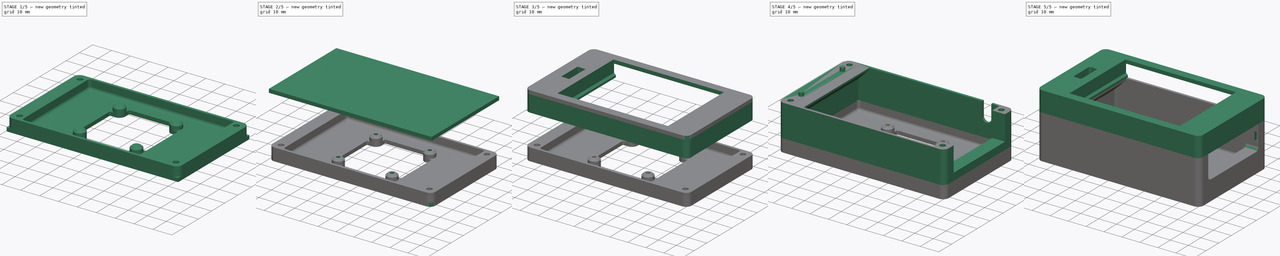
[diagram: build sequence overview — one tinted view per stage of 5, left to right]
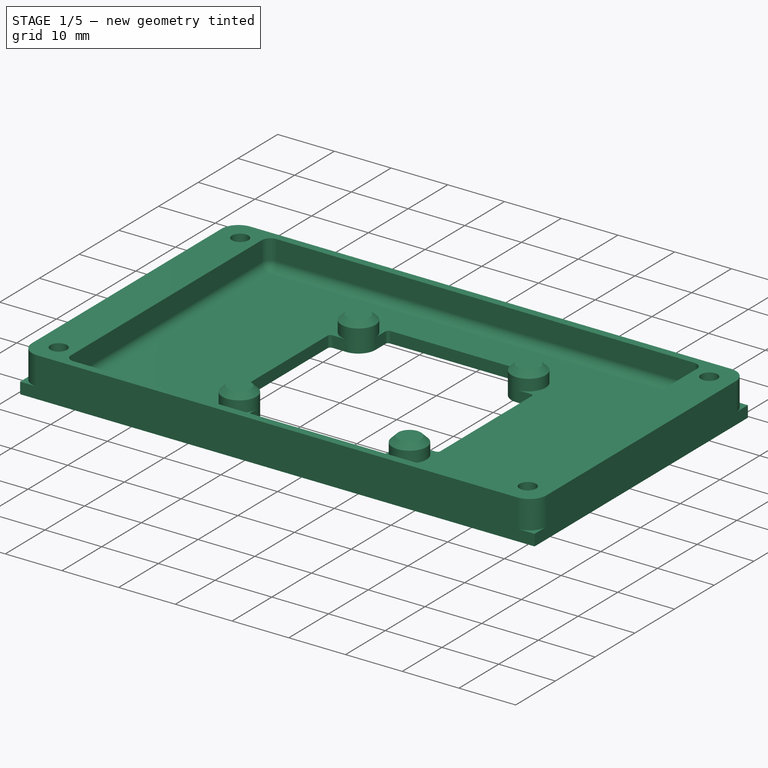
[diagram: stage 1 of 5 — iso view after this stage's code; geometry added in this stage tinted green]
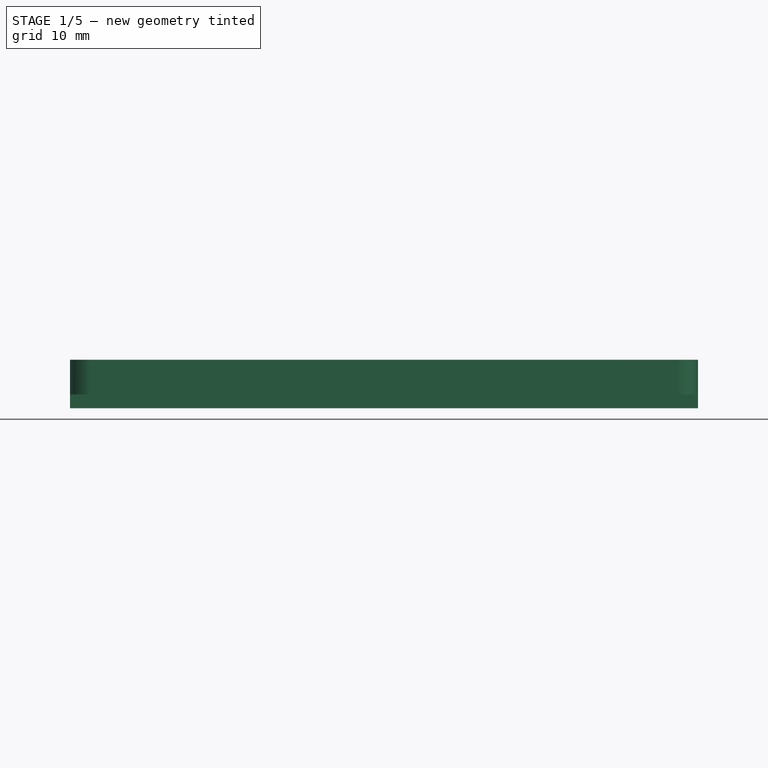
[diagram: stage 1 of 5 — front view after this stage's code; geometry added in this stage tinted green]
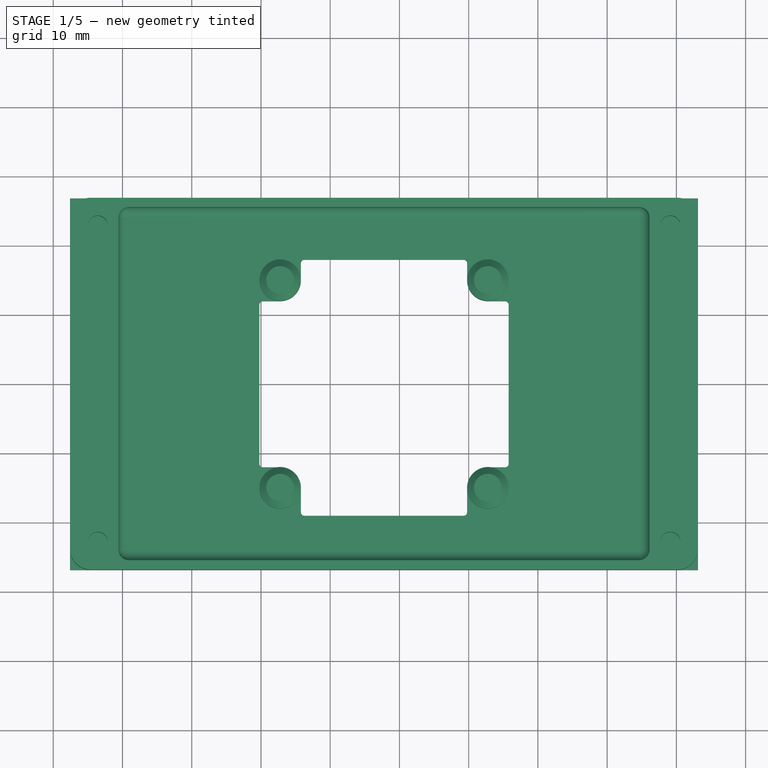
[diagram: stage 1 of 5 — top view after this stage's code; geometry added in this stage tinted green]
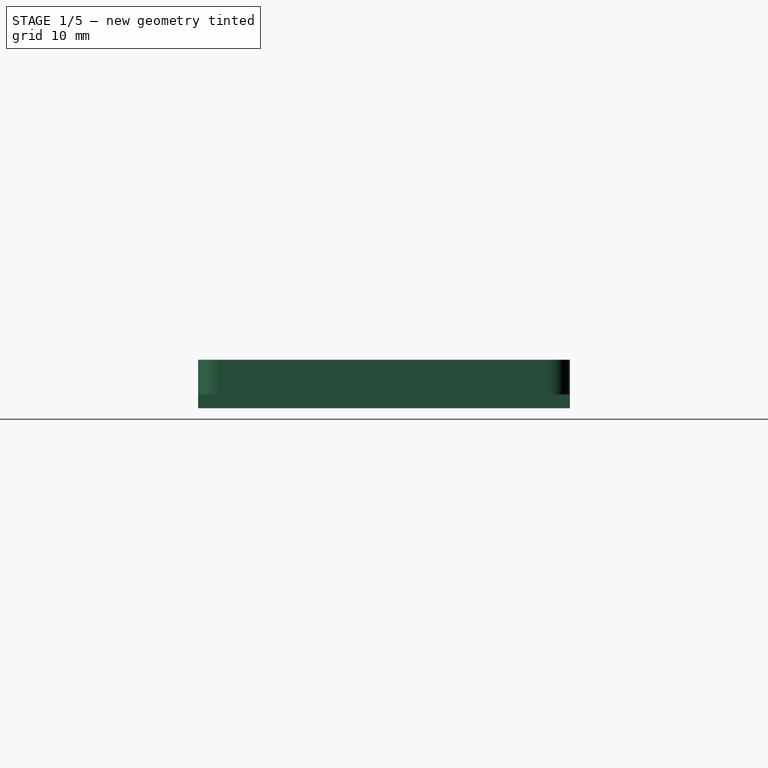
[diagram: stage 1 of 5 — right view after this stage's code; geometry added in this stage tinted green]
FCSTD DOCUMENT  (FreeCAD 0.18.4R)
Label: caseback
License: All rights reserved
LicenseURL: http://en.wikipedia.org/wiki/All_rights_reserved
objects: Sketcher::SketchObject×24, PartDesign::Fillet×15, PartDesign::Pocket×11, PartDesign::Pad×8, PartDesign::Chamfer×4, PartDesign::ShapeBinder×3, PartDesign::Body×3, PartDesign::Mirrored×2, PartDesign::Hole×1, PartDesign::FeatureBase×1
note: 92 computed .brp shape members not serialized (recipe doc carries the construction recipe); baked Part::Feature solids carry a one-line shape summary decoded from their .brp

FEATURE [PartDesign::ShapeBinder] CopyMirrored001
  Placement = pos=(0,0,-17.5) rot=(0,0,1;0rad)
  TraceSupport = false
FEATURE [Sketcher::SketchObject] Sketch017
  ExternalGeometry = -> [CopyMirrored001]
  MapMode = 5
  Placement = pos=(0,0,-28.75) rot=(1,0,0;3.14159rad)
  Support = -> [CopyMirrored001]
  sketch-geometry (15):
    g0: LineSegment StartX=-47.585 StartY=26.85 StartZ=0 EndX=43.125 EndY=26.85 EndZ=0
    g1: LineSegment StartX=43.125 StartY=26.85 StartZ=0 EndX=43.125 EndY=-26.85 EndZ=0
    g2: LineSegment StartX=43.125 StartY=-26.85 StartZ=0 EndX=-47.585 EndY=-26.85 EndZ=0
    g3: LineSegment StartX=-47.585 StartY=-26.85 StartZ=0 EndX=-47.585 EndY=26.85 EndZ=0
    g4: LineSegment StartX=-40.585 StartY=25.5 StartZ=0 EndX=36.125 EndY=25.5 EndZ=0
    g5: LineSegment StartX=36.125 StartY=25.5 StartZ=0 EndX=36.125 EndY=-25.5 EndZ=0
    g6: LineSegment StartX=36.125 StartY=-25.5 StartZ=0 EndX=-40.585 EndY=-25.5 EndZ=0
    g7: LineSegment StartX=-40.585 StartY=-25.5 StartZ=0 EndX=-40.585 EndY=25.5 EndZ=0
    g8: Circle CenterX=-43.585 CenterY=22.85 CenterZ=0 NormalX=0 NormalY=0 NormalZ=1 AngleXU=0 Radius=1.45
    g9: Circle CenterX=-43.585 CenterY=-22.85 CenterZ=0 NormalX=0 NormalY=0 NormalZ=1 AngleXU=0 Radius=1.45
    g10: Circle CenterX=39.125 CenterY=-22.85 CenterZ=0 NormalX=0 NormalY=0 NormalZ=1 AngleXU=0 Radius=1.45
    g11: Circle CenterX=39.125 CenterY=22.85 CenterZ=0 NormalX=0 NormalY=0 NormalZ=1 AngleXU=0 Radius=1.45
    g12: LineSegment [constr] StartX=-43.585 StartY=22.85 StartZ=0 EndX=39.125 EndY=-22.85 EndZ=0
    g13: LineSegment [constr] StartX=39.125 StartY=22.85 StartZ=0 EndX=-43.585 EndY=-22.85 EndZ=0
    g14: GeomPoint X=-2.23 Y=7.8e-15 Z=0
  constraints (38):
    c: Coincident(g0,g1)
    c: Coincident(g1,g2)
    c: Coincident(g2,g3)
    c: Coincident(g3,g0)
    c: Horizontal(g0)
    c: Horizontal(g2)
    c: Vertical(g1)
    c: Vertical(g3)
    c: Coincident(g4,g5)
    c: Coincident(g5,g6)
    c: Coincident(g6,g7)
    c: Coincident(g7,g4)
    c: Horizontal(g4)
    c: Horizontal(g6)
    c: Vertical(g5)
    c: Vertical(g7)
    c: Coincident(g8,g-8)
    c: Coincident(g9,g-7)
    c: Coincident(g10,g-9)
    c: Coincident(g11,g-6)
    c: PointOnObject(g0,g-4)
    c: PointOnObject(g0,g-14)
    c: PointOnObject(g1,g-18)
    c: PointOnObject(g1,g-16)
    c: PointOnObject(g4,g-12)
    c: PointOnObject(g4,g-10)
    c: PointOnObject(g5,g-11)
    c: PointOnObject(g5,g-13)
    c: Equal(g8,g9)
    c: Equal(g9,g10)
    c: Equal(g10,g11)
    c: Radius(g8) = 1.45
    c: Coincident(g12,g8)
    c: Coincident(g12,g10)
    c: Coincident(g13,g11)
    c: Coincident(g13,g9)
    c: PointOnObject(g14,g12)
    c: PointOnObject(g14,g13)
FEATURE [PartDesign::Pad] Pad005
  Length = 5
  Length2 = 100
  Placement = pos=(0,0,-17.5) rot=(0,0,1;0rad)
  Profile = -> Sketch017
  Type = 0
FEATURE [PartDesign::Fillet] Fillet008
  Base = -> Pad005 [Edge5,Edge2,Edge1,Edge8]
  BaseFeature = -> Pad005
  Placement = pos=(0,0,-17.5) rot=(0,0,1;0rad)
  Radius = 3
FEATURE [Sketcher::SketchObject] Sketch018
  ExternalGeometry = -> [Sketch017]
  MapMode = 5
  Placement = pos=(0,0,-33.75) rot=(1,0,0;3.14159rad)
  Support = -> [Fillet008]
  sketch-geometry (31):
    g0: LineSegment [constr] StartX=-43.585 StartY=22.85 StartZ=0 EndX=39.125 EndY=-22.85 EndZ=0
    g1: LineSegment [constr] StartX=39.125 StartY=22.85 StartZ=0 EndX=-43.585 EndY=-22.85 EndZ=0
    g2: GeomPoint X=-2.23 Y=8.9e-15 Z=0
    g3: LineSegment [constr] StartX=16.77 StartY=19 StartZ=0 EndX=-21.23 EndY=19 EndZ=0
    g4: LineSegment [constr] StartX=-21.23 StartY=19 StartZ=0 EndX=-21.23 EndY=-19 EndZ=0
    g5: LineSegment [constr] StartX=-21.23 StartY=-19 StartZ=0 EndX=16.77 EndY=-19 EndZ=0
    g6: LineSegment [constr] StartX=16.77 StartY=-19 StartZ=0 EndX=16.77 EndY=19 EndZ=0
    g7: Circle [constr] CenterX=-2.23 CenterY=8.9e-15 CenterZ=0 NormalX=0 NormalY=0 NormalZ=1 AngleXU=0 Radius=26.8701
    g8: LineSegment StartX=-47.585 StartY=26.85 StartZ=0 EndX=43.125 EndY=26.85 EndZ=0
    g9: LineSegment StartX=43.125 StartY=26.85 StartZ=0 EndX=43.125 EndY=-26.85 EndZ=0
    g10: LineSegment StartX=43.125 StartY=-26.85 StartZ=0 EndX=-47.585 EndY=-26.85 EndZ=0
    g11: LineSegment StartX=-47.585 StartY=-26.85 StartZ=0 EndX=-47.585 EndY=26.85 EndZ=0
    g12: LineSegment StartX=12.77 StartY=15 StartZ=0 EndX=-17.23 EndY=15 EndZ=0
    g13: LineSegment StartX=-17.23 StartY=15 StartZ=0 EndX=-17.23 EndY=-15 EndZ=0
    g14: LineSegment StartX=-17.23 StartY=-15 StartZ=0 EndX=12.77 EndY=-15 EndZ=0
    g15: LineSegment StartX=12.77 StartY=-15 StartZ=0 EndX=12.77 EndY=15 EndZ=0
    g16: Circle [constr] CenterX=-2.23 CenterY=8.9e-15 CenterZ=0 NormalX=0 NormalY=0 NormalZ=1 AngleXU=0 Radius=21.2132
    g17: Circle CenterX=-17.23 CenterY=15 CenterZ=0 NormalX=0 NormalY=0 NormalZ=1 AngleXU=0 Radius=3
    g18: Circle CenterX=12.77 CenterY=15 CenterZ=0 NormalX=0 NormalY=0 NormalZ=1 AngleXU=0 Radius=3
    g19: Circle CenterX=12.77 CenterY=-15 CenterZ=0 NormalX=0 NormalY=0 NormalZ=1 AngleXU=0 Radius=3
    g20: Circle CenterX=-17.23 CenterY=-15 CenterZ=0 NormalX=0 NormalY=0 NormalZ=1 AngleXU=0 Radius=3
    g21: LineSegment StartX=17.12 StartY=19.35 StartZ=0 EndX=-21.58 EndY=19.35 EndZ=0
    g22: LineSegment StartX=-21.58 StartY=19.35 StartZ=0 EndX=-21.58 EndY=-19.35 EndZ=0
    g23: LineSegment StartX=-21.58 StartY=-19.35 StartZ=0 EndX=17.12 EndY=-19.35 EndZ=0
    g24: LineSegment StartX=17.12 StartY=-19.35 StartZ=0 EndX=17.12 EndY=19.35 EndZ=0
    g25: Circle [constr] CenterX=-2.23 CenterY=8.9e-15 CenterZ=0 NormalX=0 NormalY=0 NormalZ=1 AngleXU=0 Radius=27.365
    g26: LineSegment StartX=-20.23 StartY=18 StartZ=0 EndX=-20.23 EndY=-18 EndZ=0
    g27: LineSegment StartX=-20.23 StartY=-18 StartZ=0 EndX=15.77 EndY=-18 EndZ=0
    g28: LineSegment StartX=15.77 StartY=-18 StartZ=0 EndX=15.77 EndY=18 EndZ=0
    g29: LineSegment StartX=15.77 StartY=18 StartZ=0 EndX=-20.23 EndY=18 EndZ=0
    g30: Circle [constr] CenterX=-2.23 CenterY=8.9e-15 CenterZ=0 NormalX=0 NormalY=0 NormalZ=1 AngleXU=0 Radius=25.4558
  constraints (80):
    c: Coincident(g0,g-3)
    c: Coincident(g0,g-5)
    c: Coincident(g1,g-6)
    c: Coincident(g1,g-4)
    c: PointOnObject(g2,g0)
    c: PointOnObject(g2,g1)
    c: Coincident(g3,g4)
    c: Coincident(g4,g5)
    c: Coincident(g5,g6)
    c: Coincident(g6,g3)
    c: Equal(g3,g4)
    c: Equal(g3,g5)
    c: Equal(g3,g6)
    c: PointOnObject(g3,g7)
    c: PointOnObject(g4,g7)
    c: PointOnObject(g5,g7)
    c: PointOnObject(g6,g7)
    c: Coincident(g7,g2)
    c: Horizontal(g3)
    c: Distance(g3) = 38
    c: Coincident(g8,g9)
    c: Coincident(g9,g10)
    c: Coincident(g10,g11)
    c: Coincident(g11,g8)
    c: Horizontal(g8)
    c: Horizontal(g10)
    c: Vertical(g9)
    c: Vertical(g11)
    c: Coincident(g8,g-8)
    c: Coincident(g9,g-10)
    c: Coincident(g12,g13)
    c: Coincident(g13,g14)
    c: Coincident(g14,g15)
    c: Coincident(g15,g12)
    c: Equal(g12,g13)
    c: Equal(g12,g14)
    c: Equal(g12,g15)
    c: PointOnObject(g12,g16)
    c: PointOnObject(g13,g16)
    c: PointOnObject(g14,g16)
    c: PointOnObject(g15,g16)
    c: Coincident(g16,g2)
    c: Horizontal(g12)
    c: Coincident(g17,g12)
    c: Coincident(g18,g12)
    c: Coincident(g19,g14)
    c: Coincident(g20,g13)
    c: Equal(g17,g18)
    c: Equal(g18,g19)
    c: Equal(g19,g20)
    c: Radius(g17) = 3
    c: Coincident(g21,g22)
    c: Coincident(g22,g23)
    c: Coincident(g23,g24)
    c: Coincident(g24,g21)
    c: Equal(g21,g22)
    c: Equal(g21,g23)
    c: Equal(g21,g24)
    c: PointOnObject(g21,g25)
    c: PointOnObject(g22,g25)
    c: PointOnObject(g23,g25)
    c: PointOnObject(g24,g25)
    c: Coincident(g25,g2)
    c: Horizontal(g21)
    c: Distance(g3,g21) = 0.35
    c: Coincident(g26,g27)
    c: Coincident(g27,g28)
    c: Coincident(g28,g29)
    c: Coincident(g29,g26)
    c: Equal(g26,g27)
    c: Equal(g26,g28)
    c: Equal(g26,g29)
    c: PointOnObject(g26,g30)
    c: PointOnObject(g27,g30)
    c: PointOnObject(g28,g30)
    c: PointOnObject(g29,g30)
    c: Coincident(g30,g2)
    c: Horizontal(g29)
    c: Distance(g26,g4) = 1
    c: Distance(g12) = 30
FEATURE [Sketcher::SketchObject] Sketch020
  ExternalGeometry = -> [Sketch018]
  MapMode = 5
  Placement = pos=(0,0,-33.75) rot=(0,0,1;0rad)
  sketch-geometry (4):
    g0: Circle CenterX=-17.23 CenterY=15 CenterZ=0 NormalX=0 NormalY=0 NormalZ=1 AngleXU=0 Radius=3
    g1: Circle CenterX=-17.23 CenterY=-15 CenterZ=0 NormalX=0 NormalY=0 NormalZ=1 AngleXU=0 Radius=3
    g2: Circle CenterX=12.77 CenterY=-15 CenterZ=0 NormalX=0 NormalY=0 NormalZ=1 AngleXU=0 Radius=3
    g3: Circle CenterX=12.77 CenterY=15 CenterZ=0 NormalX=0 NormalY=0 NormalZ=1 AngleXU=0 Radius=3
  constraints (8):
    c: Coincident(g0,g-3)
    c: Coincident(g1,g-4)
    c: Coincident(g2,g-5)
    c: Coincident(g3,g-6)
    c: Equal(g0,g3)
    c: Equal(g3,g2)
    c: Equal(g2,g1)
    c: Radius(g0) = 3
FEATURE [Sketcher::SketchObject] Sketch021
  ExternalGeometry = -> [Sketch018]
  MapMode = 5
  Placement = pos=(0,0,-35.75) rot=(1,0,0;3.14159rad)
  sketch-geometry (8):
    g0: LineSegment StartX=-21.58 StartY=19.35 StartZ=0 EndX=17.12 EndY=19.35 EndZ=0
    g1: LineSegment StartX=17.12 StartY=19.35 StartZ=0 EndX=17.12 EndY=-19.35 EndZ=0
    g2: LineSegment StartX=17.12 StartY=-19.35 StartZ=0 EndX=-21.58 EndY=-19.35 EndZ=0
    g3: LineSegment StartX=-21.58 StartY=-19.35 StartZ=0 EndX=-21.58 EndY=19.35 EndZ=0
    g4: LineSegment StartX=-23.08 StartY=20.85 StartZ=0 EndX=18.62 EndY=20.85 EndZ=0
    g5: LineSegment StartX=18.62 StartY=20.85 StartZ=0 EndX=18.62 EndY=-20.85 EndZ=0
    g6: LineSegment StartX=18.62 StartY=-20.85 StartZ=0 EndX=-23.08 EndY=-20.85 EndZ=0
    g7: LineSegment StartX=-23.08 StartY=-20.85 StartZ=0 EndX=-23.08 EndY=20.85 EndZ=0
  constraints (22):
    c: Coincident(g0,g1)
    c: Coincident(g1,g2)
    c: Coincident(g2,g3)
    c: Coincident(g3,g0)
    c: Horizontal(g0)
    c: Horizontal(g2)
    c: Vertical(g1)
    c: Vertical(g3)
    c: Coincident(g0,g-4)
    c: Coincident(g1,g-6)
    c: Coincident(g4,g5)
    c: Coincident(g5,g6)
    c: Coincident(g6,g7)
    c: Coincident(g7,g4)
    c: Horizontal(g4)
    c: Horizontal(g6)
    c: Vertical(g5)
    c: Vertical(g7)
    c: Distance(g0,g4) = 1.5
    c: Distance(g0,g7) = 1.5
    c: Distance(g1,g5) = 1.5
    c: Distance(g1,g6) = 1.5
FEATURE [Sketcher::SketchObject] Sketch019
  ExternalGeometry = -> [Sketch018,Sketch021]
  MapMode = 5
  Placement = pos=(0,0,-33.75) rot=(1,0,0;3.14159rad)
  Support = -> [Fillet008]
  sketch-geometry (16):
    g0: LineSegment StartX=-47.585 StartY=26.85 StartZ=0 EndX=43.125 EndY=26.85 EndZ=0
    g1: LineSegment StartX=43.125 StartY=26.85 StartZ=0 EndX=43.125 EndY=-26.85 EndZ=0
    g2: LineSegment StartX=43.125 StartY=-26.85 StartZ=0 EndX=-47.585 EndY=-26.85 EndZ=0
    g3: LineSegment StartX=-47.585 StartY=-26.85 StartZ=0 EndX=-47.585 EndY=26.85 EndZ=0
    g4: LineSegment StartX=-20.23 StartY=12 StartZ=0 EndX=-14.23 EndY=12 EndZ=0
    g5: LineSegment StartX=-14.23 StartY=12 StartZ=0 EndX=-14.23 EndY=19 EndZ=0
    g6: LineSegment StartX=9.77 StartY=19 StartZ=0 EndX=9.77 EndY=12 EndZ=0
    g7: LineSegment StartX=9.77 StartY=12 StartZ=0 EndX=15.77 EndY=12 EndZ=0
    g8: LineSegment StartX=15.77 StartY=12 StartZ=0 EndX=15.77 EndY=-12 EndZ=0
    g9: LineSegment StartX=15.77 StartY=-12 StartZ=0 EndX=9.77 EndY=-12 EndZ=0
    g10: LineSegment StartX=9.77 StartY=-12 StartZ=0 EndX=9.77 EndY=-18 EndZ=0
    g11: LineSegment StartX=-20.23 StartY=12 StartZ=0 EndX=-20.23 EndY=-12 EndZ=0
    g12: LineSegment StartX=-20.23 StartY=-12 StartZ=0 EndX=-14.23 EndY=-12 EndZ=0
    g13: LineSegment StartX=-14.23 StartY=-12 StartZ=0 EndX=-14.23 EndY=-18 EndZ=0
    g14: LineSegment StartX=-14.23 StartY=-18 StartZ=0 EndX=9.77 EndY=-18 EndZ=0
    g15: LineSegment StartX=-14.23 StartY=19 StartZ=0 EndX=9.77 EndY=19 EndZ=0
  constraints (46):
    c: Coincident(g0,g1)
    c: Coincident(g1,g2)
    c: Coincident(g2,g3)
    c: Coincident(g3,g0)
    c: Horizontal(g0)
    c: Horizontal(g2)
    c: Vertical(g1)
    c: Vertical(g3)
    c: Coincident(g0,g-4)
    c: Coincident(g1,g-6)
    c: PointOnObject(g4,g-7)
    c: Horizontal(g4)
    c: Coincident(g4,g5)
    c: Vertical(g6)
    c: Coincident(g6,g7)
    c: PointOnObject(g7,g-9)
    c: Horizontal(g7)
    c: Coincident(g7,g8)
    c: PointOnObject(g8,g-9)
    c: Coincident(g8,g9)
    c: Coincident(g9,g10)
    c: Vertical(g10)
    c: Coincident(g4,g11)
    c: PointOnObject(g11,g-7)
    c: Coincident(g11,g12)
    c: Horizontal(g12)
    c: Coincident(g12,g13)
    c: Vertical(g13)
    c: Vertical(g5)
    c: Tangent(g5,g-11)
    c: Tangent(g4,g-11)
    c: Tangent(g6,g-12)
    c: Tangent(g-12,g7)
    c: Horizontal(g9)
    c: Tangent(g9,g-13)
    c: Tangent(g10,g-13)
    c: Tangent(g13,g-14)
    c: Tangent(g-14,g12)
    c: Coincident(g14,g13)
    c: Coincident(g14,g10)
    c: PointOnObject(g10,g-10)
    c: PointOnObject(g13,g-10)
    c: Coincident(g15,g5)
    c: Horizontal(g15)
    c: Coincident(g15,g6)
    c: Distance(g5,g-8) = 1
FEATURE [PartDesign::Pad] Pad006
  BaseFeature = -> Fillet008
  Length = 2
  Length2 = 100
  Placement = pos=(0,0,-17.5) rot=(0,0,1;0rad)
  Profile = -> Sketch019
  Type = 0
FEATURE [PartDesign::Pad] Pad007
  BaseFeature = -> Pad006
  Length = 3
  Length2 = 100
  Placement = pos=(0,0,-17.5) rot=(0,0,1;0rad)
  Profile = -> Sketch020
  Type = 0
FEATURE [PartDesign::Fillet] Fillet009
  Base = -> Pad007 [Edge76,Edge60,Edge68,Edge84]
  BaseFeature = -> Pad007
  Placement = pos=(0,0,-17.5) rot=(0,0,1;0rad)
  Radius = 3
FEATURE [PartDesign::Fillet] Fillet010
  Base = -> Fillet009 [Edge42,Edge48,Edge44,Edge32,Edge28,Edge22,Edge26,Edge38]
  BaseFeature = -> Fillet009
  Placement = pos=(0,0,-17.5) rot=(0,0,1;0rad)
  Radius = 0.5
FEATURE [PartDesign::Fillet] Fillet011
  Base = -> Fillet010 [Edge132,Edge136,Edge134,Edge131,Edge101,Edge99,Edge100,Edge102]
  BaseFeature = -> Fillet010
  Placement = pos=(0,0,-17.5) rot=(0,0,1;0rad)
  Radius = 1.5
FEATURE [PartDesign::Chamfer] Chamfer001
  Base = -> Fillet011 [Edge84,Edge56,Edge59,Edge87]
  BaseFeature = -> Fillet011
  Placement = pos=(0,0,-17.5) rot=(0,0,1;0rad)
  Size = 1
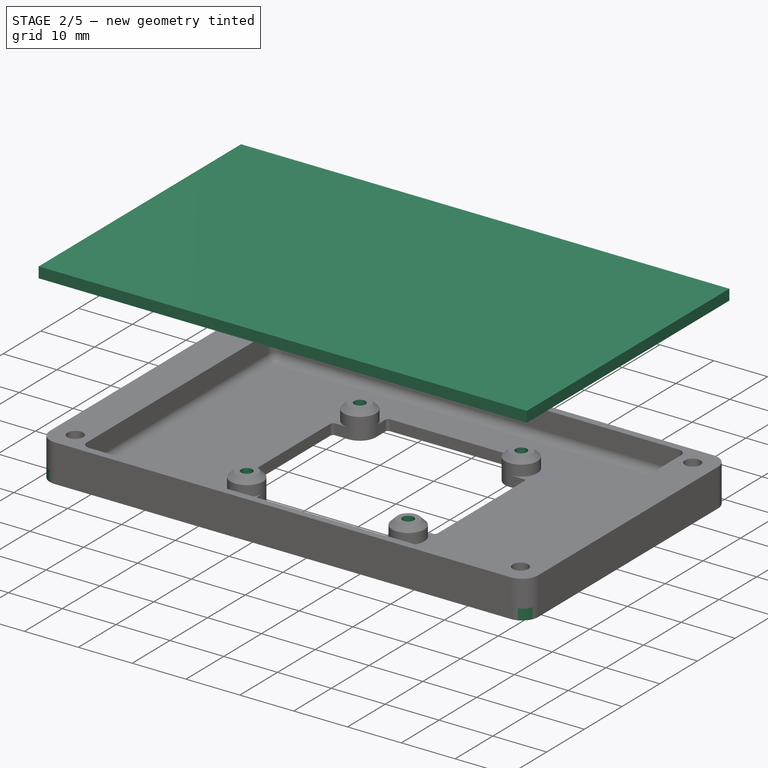
[diagram: stage 2 of 5 — iso view after this stage's code; geometry added in this stage tinted green]
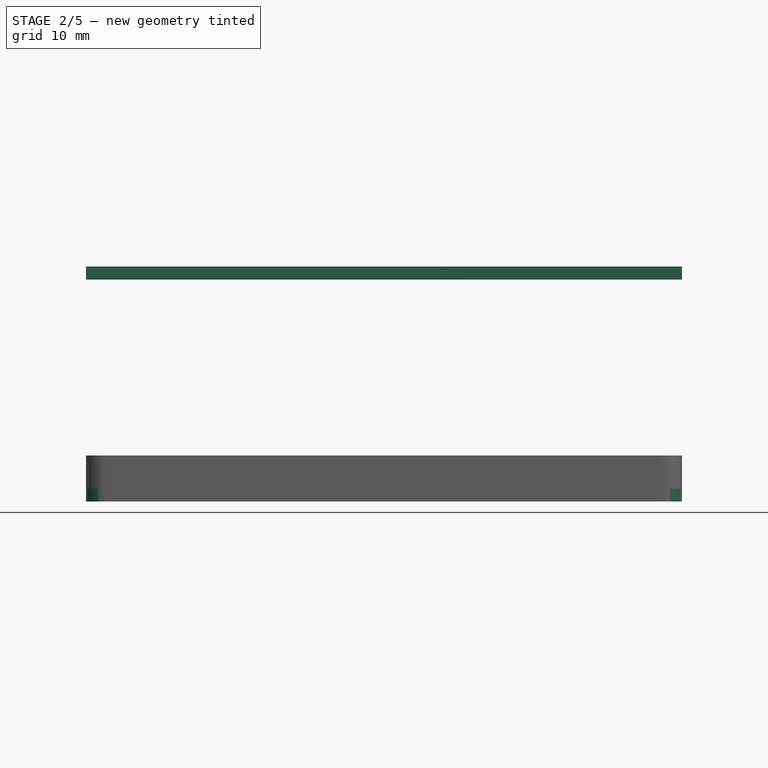
[diagram: stage 2 of 5 — front view after this stage's code; geometry added in this stage tinted green]
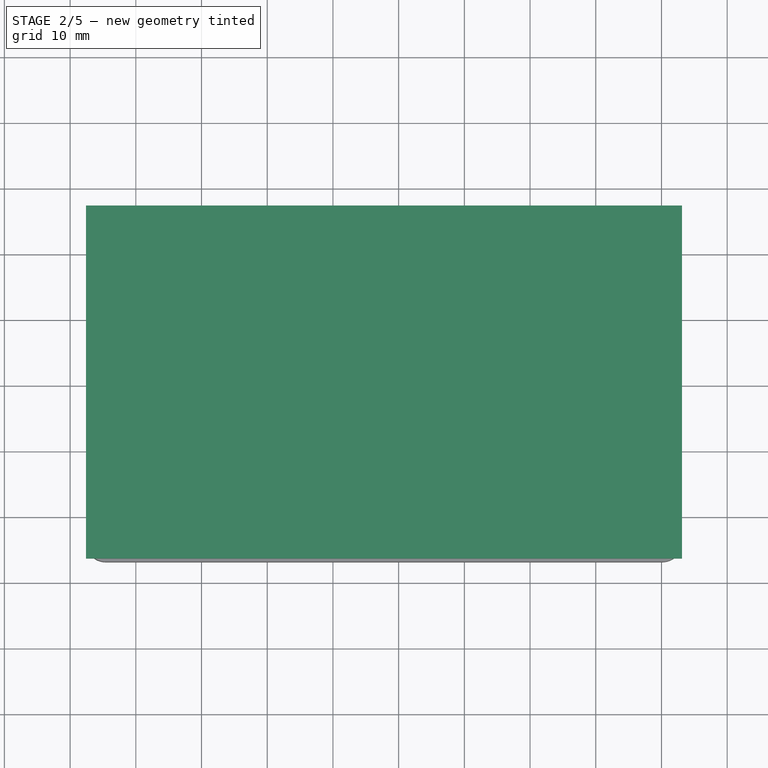
[diagram: stage 2 of 5 — top view after this stage's code; geometry added in this stage tinted green]
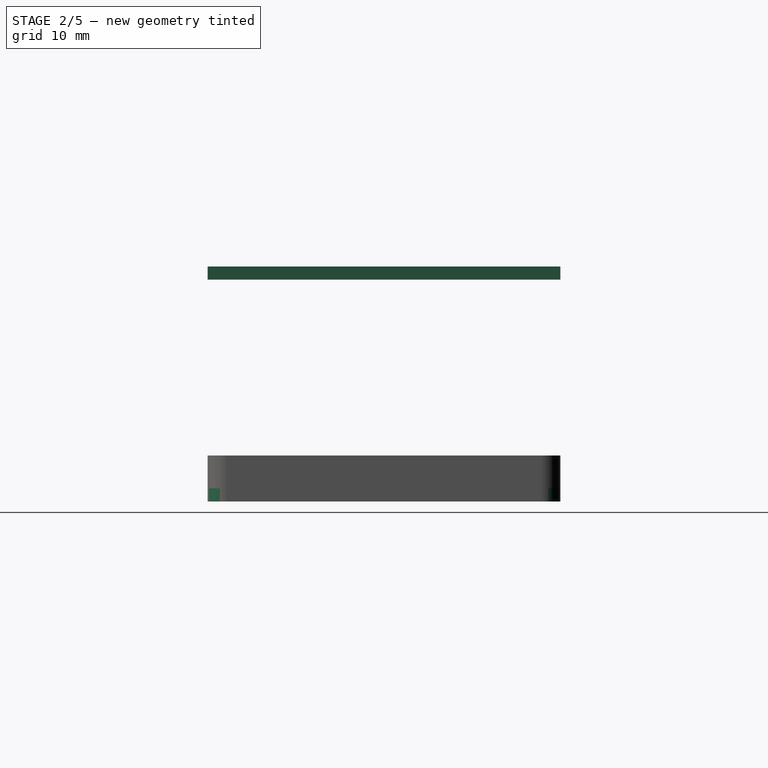
[diagram: stage 2 of 5 — right view after this stage's code; geometry added in this stage tinted green]
FEATURE [Sketcher::SketchObject] Sketch
  MapMode = 5
  Support = -> [XY_Plane]
  sketch-geometry (18):
    g0: LineSegment StartX=-35.125 StartY=-24.85 StartZ=0 EndX=35.125 EndY=-24.85 EndZ=0
    g1: LineSegment StartX=35.125 StartY=-24.85 StartZ=0 EndX=35.125 EndY=24.85 EndZ=0
    g2: LineSegment StartX=35.125 StartY=24.85 StartZ=0 EndX=-35.125 EndY=24.85 EndZ=0
    g3: LineSegment StartX=-35.125 StartY=24.85 StartZ=0 EndX=-35.125 EndY=-24.85 EndZ=0
    g4: LineSegment [constr] StartX=-35.125 StartY=24.85 StartZ=0 EndX=35.125 EndY=-24.85 EndZ=0
    g5: LineSegment [constr] StartX=35.125 StartY=24.85 StartZ=0 EndX=-35.125 EndY=-24.85 EndZ=0
    g6: LineSegment StartX=-32.585 StartY=22.31 StartZ=0 EndX=28.985 EndY=22.31 EndZ=0
    g7: LineSegment StartX=28.985 StartY=22.31 StartZ=0 EndX=28.985 EndY=-22.31 EndZ=0
    g8: LineSegment StartX=28.985 StartY=-22.31 StartZ=0 EndX=-32.585 EndY=-22.31 EndZ=0
    g9: LineSegment StartX=-32.585 StartY=-22.31 StartZ=0 EndX=-32.585 EndY=22.31 EndZ=0
    g10: GeomPoint X=0 Y=0 Z=0
    g11: LineSegment StartX=-43.125 StartY=26.85 StartZ=0 EndX=43.125 EndY=26.85 EndZ=0
    g12: LineSegment StartX=43.125 StartY=26.85 StartZ=0 EndX=43.125 EndY=-26.85 EndZ=0
    g13: LineSegment StartX=43.125 StartY=-26.85 StartZ=0 EndX=-43.125 EndY=-26.85 EndZ=0
    g14: LineSegment StartX=-43.125 StartY=-26.85 StartZ=0 EndX=-43.125 EndY=26.85 EndZ=0
    g15: LineSegment [constr] StartX=-43.125 StartY=26.85 StartZ=0 EndX=43.125 EndY=-26.85 EndZ=0
    g16: LineSegment [constr] StartX=43.125 StartY=26.85 StartZ=0 EndX=-43.125 EndY=-26.85 EndZ=0
    g17: GeomPoint X=0 Y=0 Z=0
  constraints (46):
    c: Coincident(g0,g1)
    c: Coincident(g1,g2)
    c: Coincident(g2,g3)
    c: Coincident(g3,g0)
    c: Horizontal(g0)
    c: Horizontal(g2)
    c: Vertical(g1)
    c: Vertical(g3)
    c: Coincident(g4,g2)
    c: Coincident(g4,g0)
    c: Coincident(g5,g1)
    c: Coincident(g5,g0)
    c: PointOnObject(g-1,g5)
    c: PointOnObject(g-1,g4)
    c: Distance(g2) = 70.25
    c: Distance(g3) = 49.7
    c: Coincident(g6,g7)
    c: Coincident(g7,g8)
    c: Coincident(g8,g9)
    c: Coincident(g9,g6)
    c: Horizontal(g6)
    c: Horizontal(g8)
    c: Vertical(g7)
    c: Vertical(g9)
    c: Distance(g6) = 61.57
    c: Distance(g6,g3) = 2.54
    c: Distance(g6,g2) = 2.54
    c: Distance(g8,g0) = 2.54
    c: Coincident(g10,g-1)
    c: Coincident(g11,g12)
    c: Coincident(g12,g13)
    c: Coincident(g13,g14)
    c: Coincident(g14,g11)
    c: Horizontal(g11)
    c: Horizontal(g13)
    c: Vertical(g12)
    c: Vertical(g14)
    c: Coincident(g15,g11)
    c: Coincident(g15,g12)
    c: Coincident(g16,g11)
    c: Coincident(g16,g13)
    c: PointOnObject(g17,g16)
    c: PointOnObject(g17,g15)
    c: Coincident(g17,g10)
    c: Distance(g11,g3) = 8
    c: Distance(g1,g11) = 2
FEATURE [Sketcher::SketchObject] Sketch001
  ExternalGeometry = -> [Sketch]
  MapMode = 5
  Support = -> [XY_Plane]
  sketch-geometry (4):
    g0: LineSegment StartX=43.125 StartY=26.85 StartZ=0 EndX=43.125 EndY=-26.85 EndZ=0
    g1: LineSegment StartX=43.125 StartY=26.85 StartZ=0 EndX=-47.585 EndY=26.85 EndZ=0
    g2: LineSegment StartX=43.125 StartY=-26.85 StartZ=0 EndX=-47.585 EndY=-26.85 EndZ=0
    g3: LineSegment StartX=-47.585 StartY=26.85 StartZ=0 EndX=-47.585 EndY=-26.85 EndZ=0
  constraints (10):
    c: Coincident(g0,g-6)
    c: Coincident(g1,g0)
    c: Horizontal(g1)
    c: Coincident(g2,g0)
    c: Horizontal(g2)
    c: Coincident(g3,g1)
    c: Vertical(g3)
    c: Coincident(g3,g2)
    c: Coincident(g0,g-5)
    c: Distance(g-7,g3) = 15
FEATURE [PartDesign::Pad] Pad
  Length = 2
  Length2 = 100
  Profile = -> Sketch001
  Reversed = true
  Type = 0
FEATURE [Sketcher::SketchObject] Sketch022
  ExternalGeometry = -> [Sketch018]
  MapMode = 5
  Placement = pos=(0,0,-35.75) rot=(1,0,0;3.14159rad)
  Support = -> [Chamfer001]
  sketch-geometry (4):
    g0: Circle CenterX=-17.23 CenterY=15 CenterZ=0 NormalX=0 NormalY=0 NormalZ=1 AngleXU=0 Radius=1.05
    g1: Circle CenterX=12.77 CenterY=15 CenterZ=0 NormalX=0 NormalY=0 NormalZ=1 AngleXU=0 Radius=1.05
    g2: Circle CenterX=12.77 CenterY=-15 CenterZ=0 NormalX=0 NormalY=0 NormalZ=1 AngleXU=0 Radius=1.05
    g3: Circle CenterX=-17.23 CenterY=-15 CenterZ=0 NormalX=0 NormalY=0 NormalZ=1 AngleXU=0 Radius=1.05
  constraints (8):
    c: Coincident(g0,g-3)
    c: Coincident(g1,g-4)
    c: Coincident(g2,g-5)
    c: Coincident(g3,g-6)
    c: Equal(g2,g3)
    c: Equal(g3,g0)
    c: Equal(g0,g1)
    c: Radius(g0) = 1.05
FEATURE [PartDesign::Fillet] Fillet012
  Base = -> Chamfer001 [Edge164,Edge160,Edge156,Edge155]
  BaseFeature = -> Chamfer001
  Placement = pos=(0,0,-17.5) rot=(0,0,1;0rad)
  Radius = 3
FEATURE [PartDesign::Pocket] Pocket010
  BaseFeature = -> Fillet012
  Length = 5
  Length2 = 100
  Placement = pos=(0,0,-17.5) rot=(0,0,1;0rad)
  Profile = -> Sketch022
  Type = 1
FEATURE [PartDesign::Body] Body001  label="Middle"
  Group = -> [BaseFeature,CopyHole,Sketch008,Pad002,Fillet001,Sketch009,Sketch010,Pocket005,Pocket006,Sketch012,Pad003,Chamfer,Sketch015,Pad004,Fillet005,Fillet006,Fillet007,Sketch016,Pocket009,Mirrored001,Chamfer002]
  Origin = -> Origin001
  Tip = -> Chamfer002
FEATURE [Sketcher::SketchObject] Sketch023
  ExternalGeometry = -> [CopyMirrored001]
  MapMode = 5
  Placement = pos=(0,0,-35.75) rot=(1,0,0;3.14159rad)
  Support = -> [Pocket010]
  sketch-geometry (4):
    g0: Circle CenterX=-43.585 CenterY=22.85 CenterZ=0 NormalX=0 NormalY=0 NormalZ=1 AngleXU=0 Radius=1.45
    g1: Circle CenterX=39.125 CenterY=22.85 CenterZ=0 NormalX=0 NormalY=0 NormalZ=1 AngleXU=0 Radius=1.45
    g2: Circle CenterX=39.125 CenterY=-22.85 CenterZ=0 NormalX=0 NormalY=0 NormalZ=1 AngleXU=0 Radius=1.45
    g3: Circle CenterX=-43.585 CenterY=-22.85 CenterZ=0 NormalX=0 NormalY=0 NormalZ=1 AngleXU=0 Radius=1.45
  constraints (8):
    c: Coincident(g0,g-3)
    c: Coincident(g1,g-6)
    c: Coincident(g2,g-5)
    c: Coincident(g3,g-4)
    c: Equal(g0,g1)
    c: Equal(g1,g2)
    c: Equal(g2,g3)
    c: Radius(g0) = 1.45
FEATURE [PartDesign::Pocket] Pocket011
  BaseFeature = -> Pocket010
  Length = 5
  Length2 = 100
  Placement = pos=(0,0,-17.5) rot=(0,0,1;0rad)
  Profile = -> Sketch023
  Type = 1
FEATURE [Sketcher::SketchObject] Sketch024
  ExternalGeometry = -> [Pocket011]
  MapMode = 5
  Placement = pos=(0,0,-33.75) rot=(0,0,1;0rad)
  Support = -> [Pocket011]
  sketch-geometry (6):
    g0: LineSegment StartX=-12.23 StartY=-19 StartZ=0 EndX=7.77 EndY=-19 EndZ=0
    g1: LineSegment StartX=7.77 StartY=-19 StartZ=0 EndX=7.77 EndY=-23 EndZ=0
    g2: LineSegment StartX=7.77 StartY=-23 StartZ=0 EndX=-12.23 EndY=-23 EndZ=0
    g3: LineSegment StartX=-12.23 StartY=-23 StartZ=0 EndX=-12.23 EndY=-19 EndZ=0
    g4: LineSegment [constr] StartX=-13.73 StartY=-19 StartZ=0 EndX=-12.23 EndY=-23 EndZ=0
    g5: LineSegment [constr] StartX=7.77 StartY=-23 StartZ=0 EndX=9.27 EndY=-19 EndZ=0
  constraints (16):
    c: Coincident(g0,g1)
    c: Coincident(g1,g2)
    c: Coincident(g2,g3)
    c: Coincident(g3,g0)
    c: Horizontal(g0)
    c: Horizontal(g2)
    c: Vertical(g1)
    c: Vertical(g3)
    c: PointOnObject(g0,g-3)
    c: Distance(g0) = 20
    c: Distance(g1) = 4
    c: Coincident(g4,g-3)
    c: Coincident(g4,g2)
    c: Coincident(g5,g1)
    c: Coincident(g5,g-3)
    c: Equal(g5,g4)
FEATURE [PartDesign::Pocket] Pocket012
  BaseFeature = -> Pocket011
  Length = 1.5
  Length2 = 100
  Placement = pos=(0,0,-17.5) rot=(0,0,1;0rad)
  Profile = -> Sketch024
  Type = 0
FEATURE [PartDesign::Chamfer] Chamfer003
  Base = -> Pocket012 [Edge161]
  BaseFeature = -> Pocket012
  Placement = pos=(0,0,-17.5) rot=(0,0,1;0rad)
  Size = 1
FEATURE [PartDesign::Fillet] Fillet013
  Base = -> Chamfer003 [Edge4,Edge43]
  BaseFeature = -> Chamfer003
  Placement = pos=(0,0,-17.5) rot=(0,0,1;0rad)
  Radius = 0.5
FEATURE [PartDesign::Fillet] Fillet014
  Base = -> Fillet013 [Edge5,Edge32]
  BaseFeature = -> Fillet013
  Placement = pos=(0,0,-17.5) rot=(0,0,1;0rad)
  Radius = 0.2
FEATURE [PartDesign::Body] Body002  label="Front"
  Group = -> [CopyMirrored001,Sketch017,Pad005,Fillet008,Sketch018,Sketch019,Pad006,Sketch020,Pad007,Sketch021,Fillet009,Fillet010,Fillet011,Chamfer001,Sketch022,Fillet012,Pocket010,Sketch023,Pocket011,Sketch024,Pocket012,Chamfer003,Fillet013,Fillet014]
  Origin = -> Origin002
  Tip = -> Fillet014
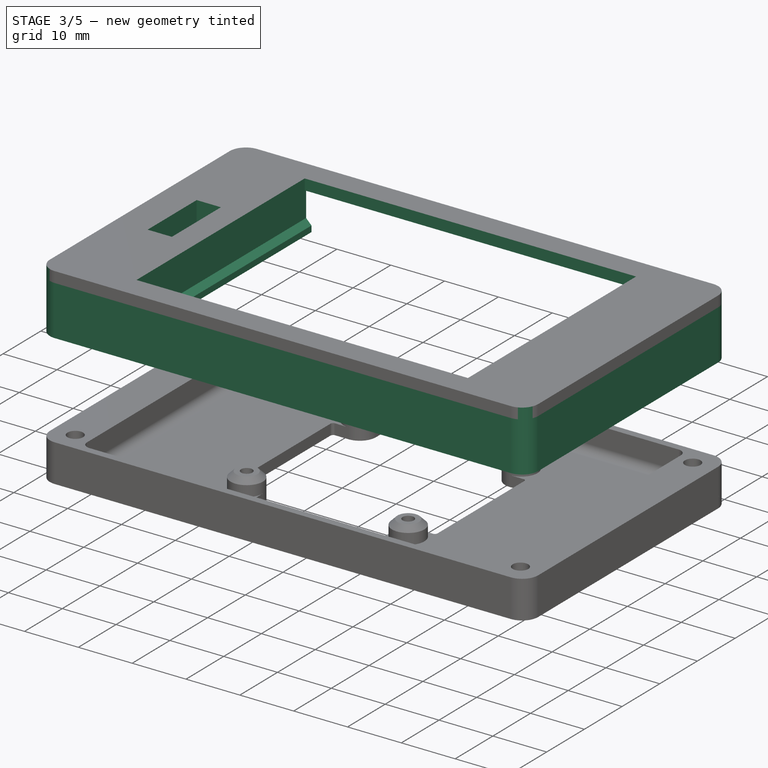
[diagram: stage 3 of 5 — iso view after this stage's code; geometry added in this stage tinted green]
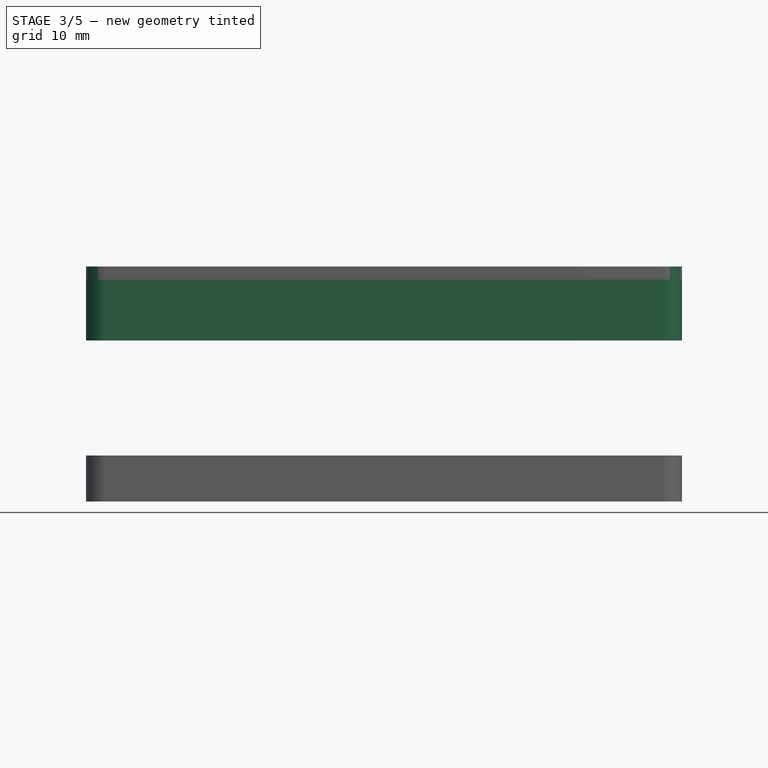
[diagram: stage 3 of 5 — front view after this stage's code; geometry added in this stage tinted green]
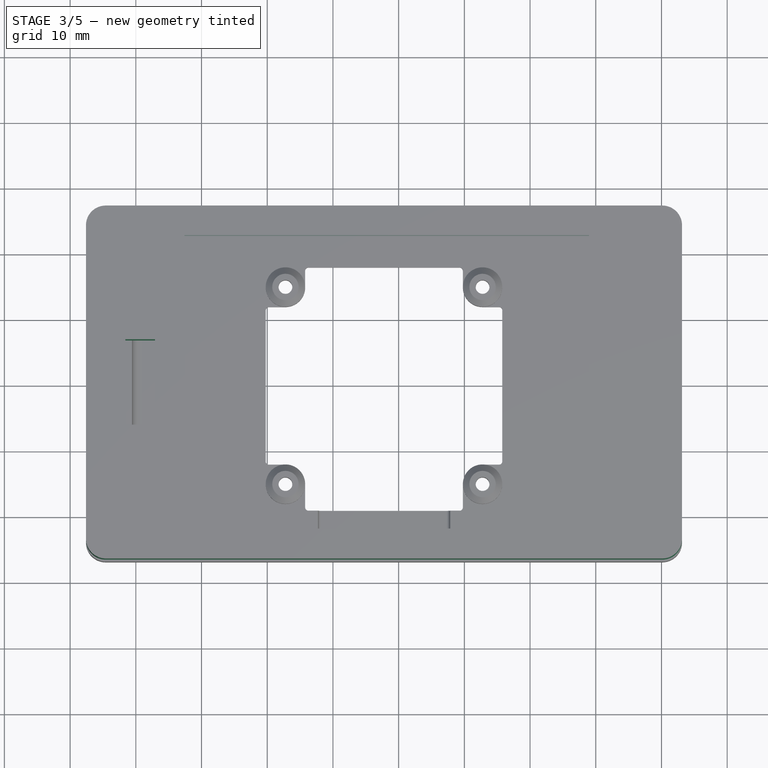
[diagram: stage 3 of 5 — top view after this stage's code; geometry added in this stage tinted green]
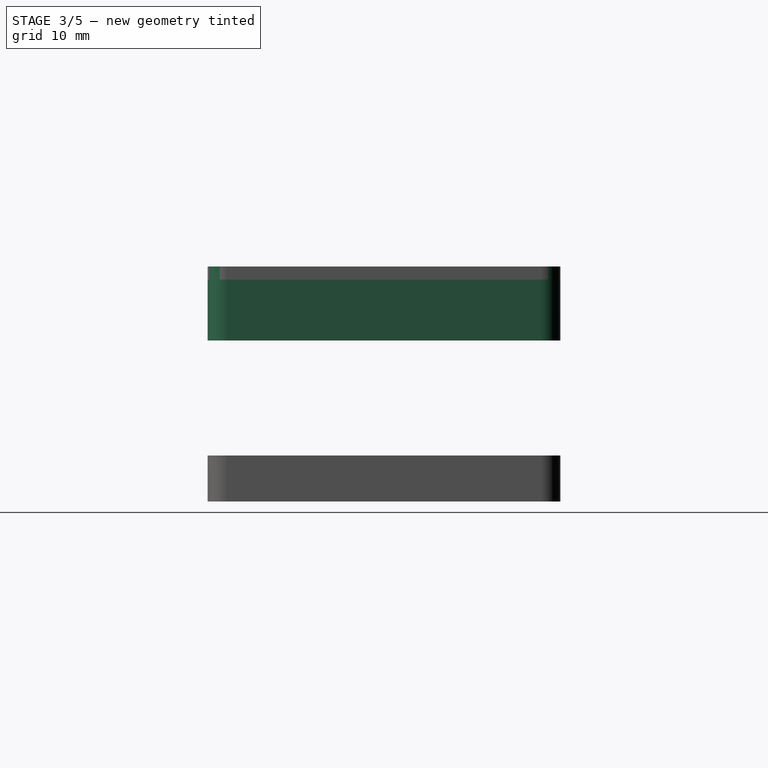
[diagram: stage 3 of 5 — right view after this stage's code; geometry added in this stage tinted green]
FEATURE [Sketcher::SketchObject] Sketch002
  ExternalGeometry = -> [Sketch]
  MapMode = 5
  Support = -> [Pad]
  sketch-geometry (4):
    g0: LineSegment StartX=-32.585 StartY=22.31 StartZ=0 EndX=28.985 EndY=22.31 EndZ=0
    g1: LineSegment StartX=28.985 StartY=22.31 StartZ=0 EndX=28.985 EndY=-22.31 EndZ=0
    g2: LineSegment StartX=28.985 StartY=-22.31 StartZ=0 EndX=-32.585 EndY=-22.31 EndZ=0
    g3: LineSegment StartX=-32.585 StartY=-22.31 StartZ=0 EndX=-32.585 EndY=22.31 EndZ=0
  constraints (8):
    c: Coincident(g-4,g0)
    c: Coincident(g0,g-5)
    c: Coincident(g0,g1)
    c: Coincident(g1,g-6)
    c: Coincident(g1,g2)
    c: Coincident(g2,g-6)
    c: Coincident(g2,g3)
    c: Coincident(g3,g0)
FEATURE [PartDesign::Pocket] Pocket
  BaseFeature = -> Pad
  Length = 5
  Length2 = 100
  Profile = -> Sketch002
  Type = 1
FEATURE [Sketcher::SketchObject] Sketch003
  ExternalGeometry = -> [Pocket]
  MapMode = 5
  Placement = pos=(0,0,0) rot=(1,0,0;1.5708rad)
  Support = -> [XZ_Plane]
  sketch-geometry (9):
    g0: LineSegment [constr] StartX=-38.5 StartY=-2 StartZ=0 EndX=-38.5 EndY=-15.15 EndZ=0
    g1: LineSegment [constr] StartX=-38.5 StartY=-15.15 StartZ=0 EndX=-34.5 EndY=-15.15 EndZ=0
    g2: LineSegment StartX=-34.5 StartY=-15.15 StartZ=0 EndX=-34.5 EndY=-10.15 EndZ=0
    g3: LineSegment StartX=-34.5 StartY=-10.15 StartZ=0 EndX=-35.5 EndY=-9.15 EndZ=0
    g4: LineSegment StartX=-35.5 StartY=-9.15 StartZ=0 EndX=-35.5 EndY=-2 EndZ=0
    g5: LineSegment [constr] StartX=-35.5 StartY=-2 StartZ=0 EndX=-38.5 EndY=-2 EndZ=0
    g6: LineSegment StartX=-35.5 StartY=-2 StartZ=0 EndX=0 EndY=-2 EndZ=0
    g7: LineSegment StartX=0 StartY=-2 StartZ=0 EndX=0 EndY=-15.15 EndZ=0
    g8: LineSegment StartX=-34.5 StartY=-15.15 StartZ=0 EndX=0 EndY=-15.15 EndZ=0
  constraints (26):
    c: PointOnObject(g0,g-3)
    c: Vertical(g0)
    c: Coincident(g0,g1)
    c: Horizontal(g1)
    c: Coincident(g1,g2)
    c: Vertical(g2)
    c: Coincident(g2,g3)
    c: Coincident(g3,g4)
    c: PointOnObject(g4,g-3)
    c: Vertical(g4)
    c: Coincident(g4,g5)
    c: Angle(g3,g4) = 2.35619
    c: Distance(g2) = 5
    c: Distance(g3,g0) = 3
    c: Distance(g2,g4) = 1
    c: Distance(g4) = 7.15
    c: Coincident(g5,g0)
    c: DistanceX(g-2,g4) = -35.5
    c: Coincident(g6,g4)
    c: PointOnObject(g6,g-3)
    c: PointOnObject(g6,g-2)
    c: Coincident(g7,g6)
    c: PointOnObject(g7,g-2)
    c: Coincident(g8,g2)
    c: Horizontal(g8)
    c: Coincident(g8,g7)
FEATURE [Sketcher::SketchObject] Sketch004
  ExternalGeometry = -> [Pocket]
  MapMode = 5
  Placement = pos=(0,0,-2) rot=(1,0,0;3.14159rad)
  Support = -> [Pocket]
  sketch-geometry (8):
    g0: LineSegment StartX=-47.585 StartY=26.85 StartZ=0 EndX=-47.585 EndY=-26.85 EndZ=0
    g1: LineSegment StartX=-47.585 StartY=-26.85 StartZ=0 EndX=43.125 EndY=-26.85 EndZ=0
    g2: LineSegment StartX=43.125 StartY=-26.85 StartZ=0 EndX=43.125 EndY=26.85 EndZ=0
    g3: LineSegment StartX=43.125 StartY=26.85 StartZ=0 EndX=-47.585 EndY=26.85 EndZ=0
    g4: LineSegment StartX=-32.585 StartY=22.31 StartZ=0 EndX=-32.585 EndY=-22.31 EndZ=0
    g5: LineSegment StartX=-32.585 StartY=-22.31 StartZ=0 EndX=28.985 EndY=-22.31 EndZ=0
    g6: LineSegment StartX=28.985 StartY=-22.31 StartZ=0 EndX=28.985 EndY=22.31 EndZ=0
    g7: LineSegment StartX=28.985 StartY=22.31 StartZ=0 EndX=-32.585 EndY=22.31 EndZ=0
  constraints (16):
    c: Coincident(g-4,g0)
    c: Coincident(g0,g-5)
    c: Coincident(g0,g1)
    c: Coincident(g1,g-6)
    c: Coincident(g1,g2)
    c: Coincident(g2,g-6)
    c: Coincident(g2,g3)
    c: Coincident(g3,g0)
    c: Coincident(g-9,g4)
    c: Coincident(g4,g-10)
    c: Coincident(g4,g5)
    c: Coincident(g5,g-10)
    c: Coincident(g5,g6)
    c: Coincident(g6,g-8)
    c: Coincident(g6,g7)
    c: Coincident(g7,g4)
FEATURE [PartDesign::Pad] Pad001
  BaseFeature = -> Pocket
  Length = 9.25
  Length2 = 100
  Profile = -> Sketch004
  Type = 0
FEATURE [PartDesign::Pocket] Pocket001
  BaseFeature = -> Pad001
  Length = 51
  Length2 = 100
  Midplane = true
  Profile = -> Sketch003
  Reversed = true
  Type = 0
FEATURE [PartDesign::Mirrored] Mirrored
  BaseFeature = -> Pocket001
  MirrorPlane = -> YZ_Plane
  Originals = -> [Pocket001]
FEATURE [Sketcher::SketchObject] Sketch005
  ExternalGeometry = -> [Mirrored]
  MapMode = 5
  Placement = pos=(5.7e-15,25.5,5.7e-15) rot=(1,0,0;1.5708rad)
  Support = -> [Mirrored]
  sketch-geometry (8):
    g0: LineSegment StartX=-34.5 StartY=-11.25 StartZ=0 EndX=-34.5 EndY=-10.15 EndZ=0
    g1: LineSegment StartX=-34.5 StartY=-10.15 StartZ=0 EndX=-35.5 EndY=-9.15 EndZ=0
    g2: LineSegment StartX=-35.5 StartY=-9.15 StartZ=0 EndX=-35.5 EndY=-2 EndZ=0
    g3: LineSegment StartX=-35.5 StartY=-2 StartZ=0 EndX=35.5 EndY=-2 EndZ=0
    g4: LineSegment StartX=35.5 StartY=-2 StartZ=0 EndX=35.5 EndY=-9.15 EndZ=0
    g5: LineSegment StartX=35.5 StartY=-9.15 StartZ=0 EndX=34.5 EndY=-10.15 EndZ=0
    g6: LineSegment StartX=34.5 StartY=-10.15 StartZ=0 EndX=34.5 EndY=-11.25 EndZ=0
    g7: LineSegment StartX=34.5 StartY=-11.25 StartZ=0 EndX=-34.5 EndY=-11.25 EndZ=0
  constraints (16):
    c: Coincident(g-5,g0)
    c: Coincident(g0,g-5)
    c: Coincident(g0,g1)
    c: Coincident(g1,g-4)
    c: Coincident(g1,g2)
    c: Coincident(g2,g-6)
    c: Coincident(g2,g3)
    c: Coincident(g3,g-7)
    c: Coincident(g3,g4)
    c: Coincident(g4,g-9)
    c: Coincident(g4,g5)
    c: Coincident(g5,g-10)
    c: Coincident(g5,g6)
    c: Coincident(g6,g-10)
    c: Coincident(g6,g7)
    c: Coincident(g7,g0)
FEATURE [PartDesign::Pocket] Pocket002
  BaseFeature = -> Mirrored
  Length = 5
  Length2 = 100
  Profile = -> Sketch005
  Type = 1
FEATURE [PartDesign::Fillet] Fillet
  Base = -> Pocket002 [Edge1,Edge18,Edge2,Edge19,Edge10,Edge35,Edge5,Edge34]
  BaseFeature = -> Pocket002
  Radius = 3
FEATURE [Sketcher::SketchObject] Sketch006
  ExternalGeometry = -> [Fillet]
  MapMode = 5
  Placement = pos=(0,0,-11.25) rot=(1,0,0;3.14159rad)
  Support = -> [Fillet]
  sketch-geometry (12):
    g0: LineSegment [constr] StartX=-43.585 StartY=22.85 StartZ=0 EndX=39.125 EndY=22.85 EndZ=0
    g1: LineSegment [constr] StartX=39.125 StartY=22.85 StartZ=0 EndX=39.125 EndY=-22.85 EndZ=0
    g2: LineSegment [constr] StartX=39.125 StartY=-22.85 StartZ=0 EndX=-43.585 EndY=-22.85 EndZ=0
    g3: LineSegment [constr] StartX=-43.585 StartY=-22.85 StartZ=0 EndX=-43.585 EndY=22.85 EndZ=0
    g4: Circle CenterX=-43.585 CenterY=22.85 CenterZ=0 NormalX=0 NormalY=0 NormalZ=1 AngleXU=0 Radius=2.2
    g5: Circle CenterX=-43.585 CenterY=-22.85 CenterZ=0 NormalX=0 NormalY=0 NormalZ=1 AngleXU=0 Radius=2.2
    g6: Circle CenterX=39.125 CenterY=-22.85 CenterZ=0 NormalX=0 NormalY=0 NormalZ=1 AngleXU=0 Radius=2.2
    g7: Circle CenterX=39.125 CenterY=22.85 CenterZ=0 NormalX=0 NormalY=0 NormalZ=1 AngleXU=0 Radius=2.2
    g8: Circle CenterX=-43.585 CenterY=22.85 CenterZ=0 NormalX=0 NormalY=0 NormalZ=1 AngleXU=0 Radius=4
    g9: Circle CenterX=-43.585 CenterY=-22.85 CenterZ=0 NormalX=0 NormalY=0 NormalZ=1 AngleXU=0 Radius=4
    g10: Circle CenterX=39.125 CenterY=22.85 CenterZ=0 NormalX=0 NormalY=0 NormalZ=1 AngleXU=0 Radius=4
    g11: Circle CenterX=39.125 CenterY=-22.85 CenterZ=0 NormalX=0 NormalY=0 NormalZ=1 AngleXU=0 Radius=4
  constraints (28):
    c: Coincident(g0,g1)
    c: Coincident(g1,g2)
    c: Coincident(g2,g3)
    c: Coincident(g3,g0)
    c: Horizontal(g0)
    c: Horizontal(g2)
    c: Vertical(g1)
    c: Vertical(g3)
    c: Coincident(g5,g2)
    c: Coincident(g6,g1)
    c: Coincident(g7,g0)
    c: Equal(g7,g4)
    c: Equal(g4,g5)
    c: Equal(g5,g6)
    c: Radius(g4) = 2.2
    c: Tangent(g8,g-4)
    c: Tangent(g8,g-3)
    c: Radius(g8) = 4
    c: Coincident(g8,g4)
    c: Coincident(g0,g4)
    c: Coincident(g9,g5)
    c: Equal(g9,g8)
    c: Tangent(g9,g-7)
    c: Coincident(g10,g7)
    c: Coincident(g11,g6)
    c: Equal(g11,g10)
    c: Equal(g10,g8)
    c: Tangent(g11,g-5)
FEATURE [PartDesign::Hole] Hole
  BaseFeature = -> Fillet
  Depth = 7
  DepthType = 0
  Diameter = 4.4
  DrillPoint = 0
  DrillPointAngle = 118
  HoleCutCountersinkAngle = 90
  HoleCutDepth = 0
  HoleCutDiameter = 0
  HoleCutType = 0
  ModelActualThread = false
  Profile = -> Sketch006
  Tapered = false
  TaperedAngle = 90
  ThreadAngle = 0
  ThreadClass = 0
  ThreadCutOffInner = 0
  ThreadCutOffOuter = 0
  ThreadDirection = 0
  ThreadFit = 0
  ThreadPitch = 0
  ThreadSize = 0
  ThreadType = 0
  Threaded = false
FEATURE [PartDesign::ShapeBinder] CopyHole
  TraceSupport = false
FEATURE [PartDesign::ShapeBinder] CopyCopyHole
  TraceSupport = false
FEATURE [Sketcher::SketchObject] Sketch008
  ExternalGeometry = -> [Hole]
  MapMode = 5
  Placement = pos=(0,0,-11.25) rot=(1,0,0;3.14159rad)
  Support = -> [CopyCopyHole]
  sketch-geometry (12):
    g0: LineSegment StartX=-40.585 StartY=25.5 StartZ=0 EndX=-40.585 EndY=-25.5 EndZ=0
    g1: LineSegment StartX=-47.585 StartY=26.85 StartZ=0 EndX=43.125 EndY=26.85 EndZ=0
    g2: LineSegment StartX=43.125 StartY=26.85 StartZ=0 EndX=43.125 EndY=-26.85 EndZ=0
    g3: LineSegment StartX=43.125 StartY=-26.85 StartZ=0 EndX=-47.585 EndY=-26.85 EndZ=0
    g4: LineSegment StartX=-47.585 StartY=-26.85 StartZ=0 EndX=-47.585 EndY=26.85 EndZ=0
    g5: Circle CenterX=-43.585 CenterY=22.85 CenterZ=0 NormalX=0 NormalY=0 NormalZ=1 AngleXU=0 Radius=1.475
    g6: Circle CenterX=-43.585 CenterY=-22.85 CenterZ=0 NormalX=0 NormalY=0 NormalZ=1 AngleXU=0 Radius=1.475
    g7: Circle CenterX=39.125 CenterY=22.85 CenterZ=0 NormalX=0 NormalY=0 NormalZ=1 AngleXU=0 Radius=1.475
    g8: Circle CenterX=39.125 CenterY=-22.85 CenterZ=0 NormalX=0 NormalY=0 NormalZ=1 AngleXU=0 Radius=1.475
    g9: LineSegment StartX=-40.585 StartY=-25.5 StartZ=0 EndX=36.125 EndY=-25.5 EndZ=0
    g10: LineSegment StartX=36.125 StartY=-25.5 StartZ=0 EndX=36.125 EndY=25.5 EndZ=0
    g11: LineSegment StartX=36.125 StartY=25.5 StartZ=0 EndX=-40.585 EndY=25.5 EndZ=0
  constraints (32):
    c: Vertical(g0)
    c: Coincident(g1,g2)
    c: Coincident(g2,g3)
    c: Coincident(g3,g4)
    c: Coincident(g4,g1)
    c: Horizontal(g1)
    c: Horizontal(g3)
    c: Vertical(g2)
    c: Vertical(g4)
    c: Tangent(g2,g-5)
    c: Tangent(g3,g-5)
    c: Tangent(g4,g-4)
    c: Tangent(g1,g-3)
    c: Coincident(g5,g-8)
    c: Coincident(g6,g-9)
    c: Coincident(g7,g-7)
    c: Coincident(g8,g-10)
    c: Equal(g8,g7)
    c: Equal(g7,g5)
    c: Equal(g5,g6)
    c: Radius(g5) = 1.475
    c: Distance(g5,g0) = 3
    c: Coincident(g0,g9)
    c: Horizontal(g9)
    c: Coincident(g9,g10)
    c: Vertical(g10)
    c: Coincident(g10,g11)
    c: Horizontal(g11)
    c: Coincident(g11,g0)
    c: PointOnObject(g-11,g11)
    c: Distance(g7,g10) = 3
    c: PointOnObject(g-11,g9)
FEATURE [Sketcher::SketchObject] Sketch011
  ExternalGeometry = -> [Hole]
  MapMode = 5
  Placement = pos=(0,0,0) rot=(1,0,0;1.5708rad)
  Support = -> [XZ_Plane]
  sketch-geometry (6):
    g0: LineSegment StartX=-37.085 StartY=0 StartZ=0 EndX=-37.085 EndY=-11.25 EndZ=0
    g1: LineSegment StartX=-37.085 StartY=-11.25 StartZ=0 EndX=-47.585 EndY=-11.25 EndZ=0
    g2: LineSegment StartX=-47.585 StartY=-11.25 StartZ=0 EndX=-47.585 EndY=-6.75 EndZ=0
    g3: LineSegment StartX=-47.585 StartY=-6.75 StartZ=0 EndX=-41.585 EndY=-6.75 EndZ=0
    g4: LineSegment StartX=-41.585 StartY=-6.75 StartZ=0 EndX=-41.585 EndY=0 EndZ=0
    g5: LineSegment StartX=-41.585 StartY=0 StartZ=0 EndX=-37.085 EndY=0 EndZ=0
  constraints (18):
    c: PointOnObject(g0,g-1)
    c: Vertical(g0)
    c: Coincident(g0,g1)
    c: Horizontal(g1)
    c: Coincident(g1,g2)
    c: Vertical(g2)
    c: Coincident(g2,g3)
    c: Horizontal(g3)
    c: Coincident(g3,g4)
    c: PointOnObject(g4,g-1)
    c: Vertical(g4)
    c: Coincident(g4,g5)
    c: PointOnObject(g1,g-4)
    c: Distance(g5) = 4.5
    c: Equal(g2,g5)
    c: Coincident(g0,g5)
    c: PointOnObject(g0,g-5)
    c: Distance(g4,g-4) = 6
FEATURE [PartDesign::Pocket] Pocket007
  BaseFeature = -> Hole
  Length = 13
  Length2 = 100
  Midplane = true
  Profile = -> Sketch011
  Type = 0
FEATURE [PartDesign::Fillet] Fillet002
  Base = -> Pocket007 [Edge53]
  BaseFeature = -> Pocket007
  Radius = 2.5
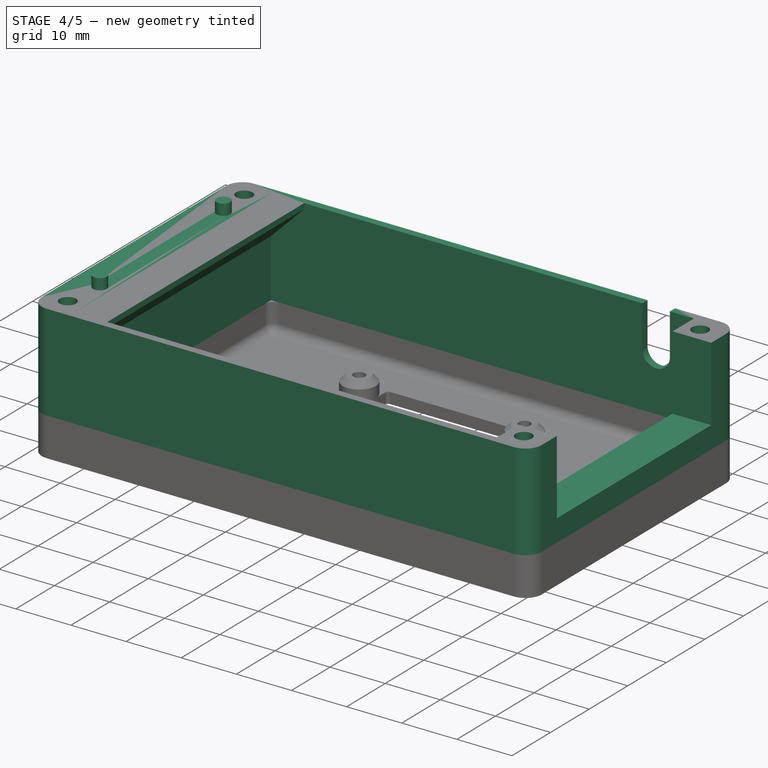
[diagram: stage 4 of 5 — iso view after this stage's code; geometry added in this stage tinted green]
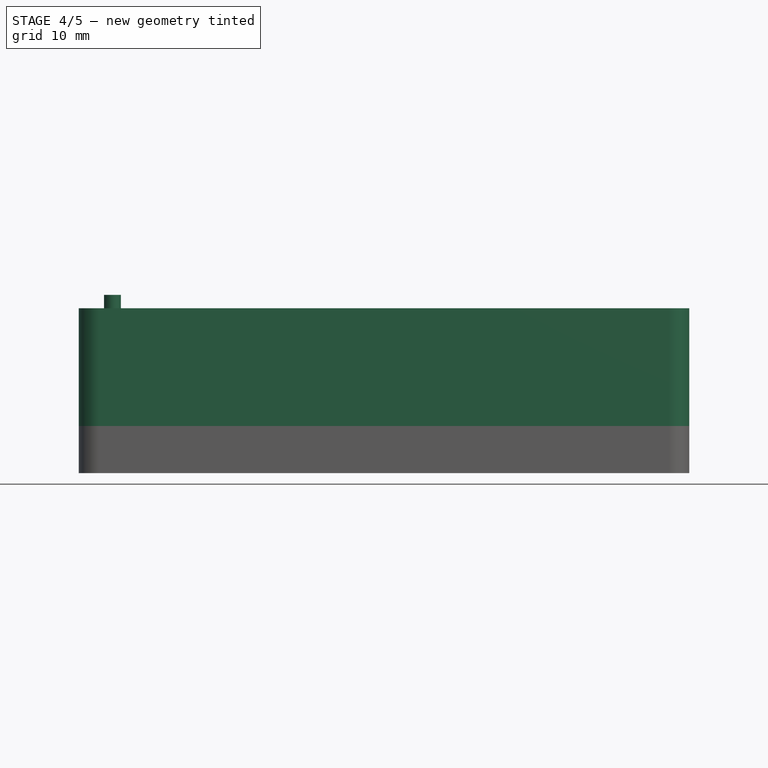
[diagram: stage 4 of 5 — front view after this stage's code; geometry added in this stage tinted green]
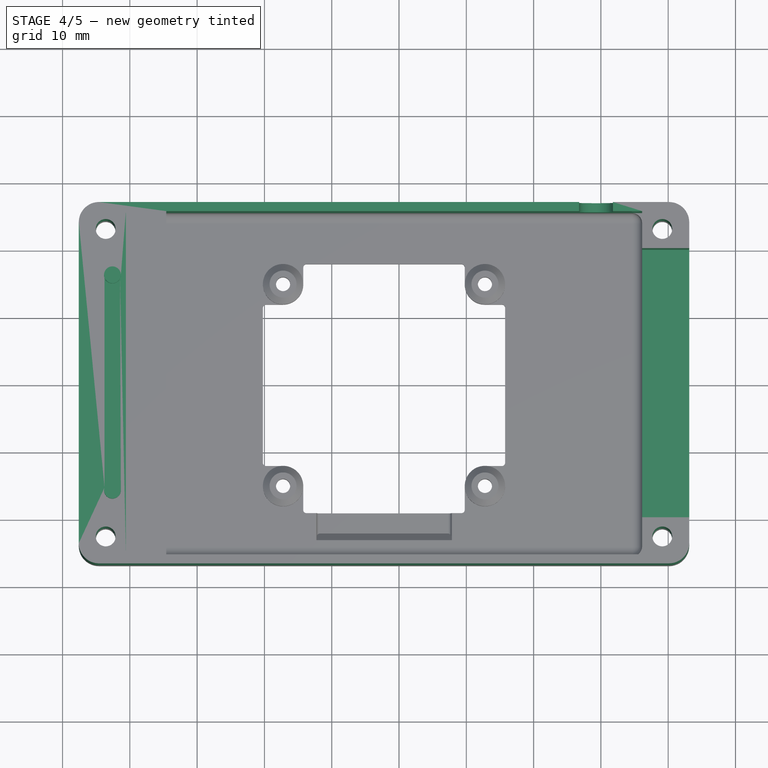
[diagram: stage 4 of 5 — top view after this stage's code; geometry added in this stage tinted green]
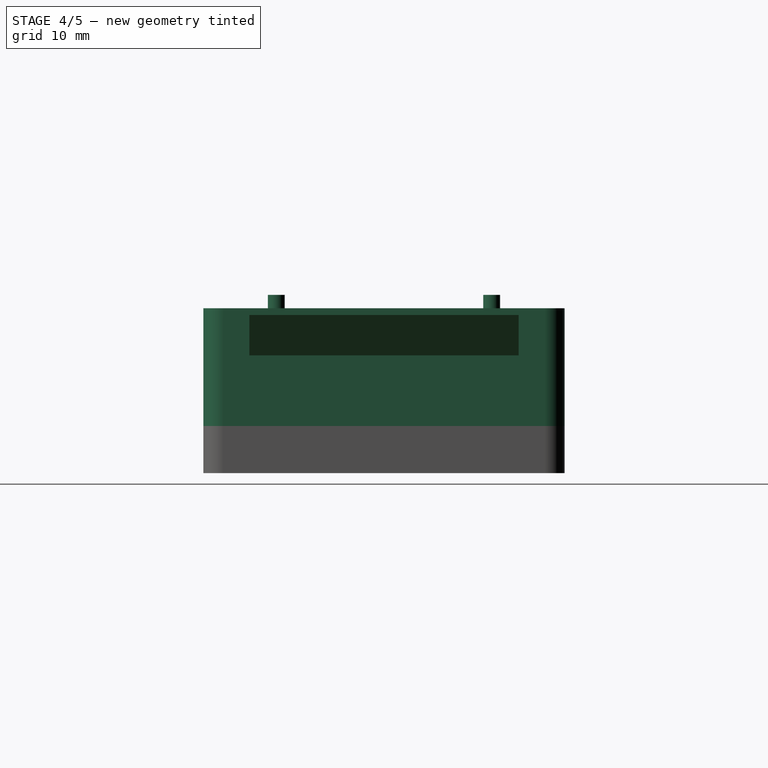
[diagram: stage 4 of 5 — right view after this stage's code; geometry added in this stage tinted green]
FEATURE [PartDesign::Fillet] Fillet003
  Base = -> Fillet002 [Edge4,Edge7,Edge55,Edge20]
  BaseFeature = -> Fillet002
  Radius = 1
FEATURE [Sketcher::SketchObject] Sketch013  label="locatingfeatures"
  ExternalGeometry = -> [Fillet003]
  MapMode = 5
  Support = -> [XY_Plane002]
  sketch-geometry (6):
    g0: LineSegment [constr] StartX=-42.585 StartY=-16 StartZ=0 EndX=-42.585 EndY=16 EndZ=0
    g1: Circle CenterX=-42.585 CenterY=16 CenterZ=0 NormalX=0 NormalY=0 NormalZ=1 AngleXU=0 Radius=5
    g2: Circle CenterX=-42.585 CenterY=-16 CenterZ=0 NormalX=0 NormalY=0 NormalZ=1 AngleXU=0 Radius=5
    g3: GeomPoint X=-42.585 Y=0 Z=0
    g4: LineSegment [constr] StartX=-42.585 StartY=-16 StartZ=0 EndX=0 EndY=0 EndZ=0
    g5: LineSegment [constr] StartX=-42.585 StartY=16 StartZ=0 EndX=0 EndY=0 EndZ=0
  constraints (14):
    c: Vertical(g0)
    c: Coincident(g1,g0)
    c: Equal(g1,g2)
    c: Coincident(g2,g0)
    c: DistanceY(g-1,g0) = 16
    c: Tangent(g2,g-4)
    c: Radius(g1) = 5
    c: PointOnObject(g3,g-1)
    c: PointOnObject(g3,g0)
    c: Coincident(g4,g2)
    c: Coincident(g4,g-1)
    c: Coincident(g5,g1)
    c: Coincident(g5,g4)
    c: Equal(g5,g4)
FEATURE [Sketcher::SketchObject] Sketch014
  ExternalGeometry = -> [Sketch013]
  MapMode = 5
  Placement = pos=(0,0,-11.25) rot=(1,0,0;3.14159rad)
  Support = -> [Fillet003]
  sketch-geometry (2):
    g0: Circle CenterX=-42.585 CenterY=16 CenterZ=0 NormalX=0 NormalY=0 NormalZ=1 AngleXU=0 Radius=1.5
    g1: Circle CenterX=-42.585 CenterY=-16 CenterZ=0 NormalX=0 NormalY=0 NormalZ=1 AngleXU=0 Radius=1.5
  constraints (4):
    c: Coincident(g0,g-3)
    c: Coincident(g1,g-4)
    c: Equal(g1,g0)
    c: Radius(g0) = 1.5
FEATURE [PartDesign::FeatureBase] BaseFeature
FEATURE [PartDesign::Pad] Pad002
  BaseFeature = -> BaseFeature
  Length = 17.5
  Length2 = 100
  Profile = -> Sketch008
  Type = 0
FEATURE [PartDesign::Fillet] Fillet001
  Base = -> Pad002 [Edge5,Edge8,Edge1,Edge2]
  BaseFeature = -> Pad002
  Radius = 3
FEATURE [Sketcher::SketchObject] Sketch009
  ExternalGeometry = -> [Fillet001]
  MapMode = 5
  Placement = pos=(0,26.85,0) rot=(0,0.707107,0.707107;3.14159rad)
  Support = -> [Fillet001]
  sketch-geometry (7):
    g0: ArcOfCircle CenterX=-29.275 CenterY=-18.75 CenterZ=0 NormalX=0 NormalY=0 NormalZ=1 AngleXU=0 Radius=2.5 StartAngle=3.14159 EndAngle=6.28319
    g1: ArcOfCircle CenterX=-29.275 CenterY=-11.25 CenterZ=0 NormalX=0 NormalY=0 NormalZ=1 AngleXU=0 Radius=2.5 StartAngle=2e-16 EndAngle=3.14159
    g2: LineSegment StartX=-26.775 StartY=-18.75 StartZ=0 EndX=-26.775 EndY=-11.25 EndZ=0
    g3: LineSegment StartX=-31.775 StartY=-18.75 StartZ=0 EndX=-31.775 EndY=-11.25 EndZ=0
    g4: GeomPoint X=-35.525 Y=-11.25 Z=0
    g5: Circle CenterX=-35.175 CenterY=-17.75 CenterZ=0 NormalX=0 NormalY=0 NormalZ=1 AngleXU=0 Radius=0.8
    g6: LineSegment [constr] StartX=-35.175 StartY=-17.75 StartZ=0 EndX=-35.175 EndY=-11.25 EndZ=0
  constraints (18):
    c: Tangent(g0,g3) = 1.5708
    c: Tangent(g0,g2) = -1.5708
    c: Tangent(g2,g1) = -1.5708
    c: Tangent(g3,g1) = 1.5708
    c: Vertical(g2)
    c: Equal(g0,g1)
    c: PointOnObject(g4,g-3)
    c: Distance(g4,g-3) = 4.6
    c: Radius(g1) = 2.5
    c: Distance(g0,g1) = 7.5
    c: PointOnObject(g1,g-3)
    c: Distance(g1,g4) = 6.25
    c: Radius(g5) = 0.8
    c: Distance(g5,g-3) = 6.5
    c: Coincident(g6,g5)
    c: PointOnObject(g6,g-3)
    c: Vertical(g6)
    c: Distance(g6,g4) = 0.35
FEATURE [Sketcher::SketchObject] Sketch010
  MapMode = 5
  Placement = pos=(43.125,0,0) rot=(0.57735,0.57735,0.57735;2.0944rad)
  Support = -> [Fillet001]
  sketch-geometry (4):
    g0: LineSegment StartX=20 StartY=-24.75 StartZ=0 EndX=-20 EndY=-24.75 EndZ=0
    g1: LineSegment StartX=-20 StartY=-24.75 StartZ=0 EndX=-20 EndY=-11.25 EndZ=0
    g2: LineSegment StartX=-20 StartY=-11.25 StartZ=0 EndX=20 EndY=-11.25 EndZ=0
    g3: LineSegment StartX=20 StartY=-11.25 StartZ=0 EndX=20 EndY=-24.75 EndZ=0
  constraints (12):
    c: Coincident(g0,g1)
    c: Coincident(g1,g2)
    c: Coincident(g2,g3)
    c: Coincident(g3,g0)
    c: Horizontal(g0)
    c: Horizontal(g2)
    c: Vertical(g1)
    c: Vertical(g3)
    c: Distance(g3) = 13.5
    c: DistanceX(g-2,g2) = 20
    c: DistanceX(g-2,g1) = -20
    c: Distance(g-1,g2) = 11.25
FEATURE [PartDesign::Pocket] Pocket005
  BaseFeature = -> Fillet001
  Length = 5
  Length2 = 100
  Profile = -> Sketch009
  Type = 0
FEATURE [PartDesign::Pocket] Pocket006
  BaseFeature = -> Pocket005
  Length = 5
  Length2 = 100
  Profile = -> Sketch010
  Type = 2
FEATURE [Sketcher::SketchObject] Sketch012
  ExternalGeometry = -> [Pocket006]
  MapMode = 5
  Placement = pos=(0,0,-11.25) rot=(0,0,1;0rad)
  Support = -> [Pocket006]
  sketch-geometry (4):
    g0: LineSegment StartX=-40.585 StartY=25.5 StartZ=0 EndX=-34.585 EndY=25.5 EndZ=0
    g1: LineSegment StartX=-34.585 StartY=25.5 StartZ=0 EndX=-34.585 EndY=-25.5 EndZ=0
    g2: LineSegment StartX=-34.585 StartY=-25.5 StartZ=0 EndX=-40.585 EndY=-25.5 EndZ=0
    g3: LineSegment StartX=-40.585 StartY=-25.5 StartZ=0 EndX=-40.585 EndY=25.5 EndZ=0
  constraints (11):
    c: Coincident(g0,g1)
    c: Coincident(g1,g2)
    c: Coincident(g2,g3)
    c: Coincident(g3,g0)
    c: Horizontal(g0)
    c: Horizontal(g2)
    c: Vertical(g1)
    c: Vertical(g3)
    c: Coincident(g0,g-4)
    c: PointOnObject(g1,g-5)
    c: Distance(g2) = 6
FEATURE [PartDesign::Pad] Pad003
  BaseFeature = -> Pocket006
  Length = 1
  Length2 = 100
  Profile = -> Sketch012
  Reversed = true
  Type = 0
FEATURE [PartDesign::Chamfer] Chamfer
  Base = -> Pad003 [Edge76]
  BaseFeature = -> Pad003
  Size = 5.99
FEATURE [PartDesign::Body] Body  label="Back"
  Group = -> [Sketch,Sketch001,Pad,Sketch002,Pocket,Sketch003,Sketch004,Pad001,Pocket001,Mirrored,Sketch005,Pocket002,Fillet,Sketch006,Hole,CopyCopyHole,Sketch011,Pocket007,Fillet002,Fillet003,Sketch014,Pocket008,Fillet004]
  Origin = -> Origin
  Tip = -> Fillet004
FEATURE [Sketcher::SketchObject] Sketch015
  ExternalGeometry = -> [Sketch013]
  MapMode = 5
  Placement = pos=(0,0,-11.25) rot=(0,0,1;0rad)
  Support = -> [Chamfer]
  sketch-geometry (2):
    g0: Circle CenterX=-42.585 CenterY=16 CenterZ=0 NormalX=0 NormalY=0 NormalZ=1 AngleXU=0 Radius=1.25
    g1: Circle CenterX=-42.585 CenterY=-16 CenterZ=0 NormalX=0 NormalY=0 NormalZ=1 AngleXU=0 Radius=1.25
  constraints (4):
    c: Coincident(g0,g-3)
    c: Coincident(g1,g-4)
    c: Equal(g0,g1)
    c: Radius(g0) = 1.25
FEATURE [PartDesign::Pad] Pad004
  BaseFeature = -> Chamfer
  Length = 2
  Length2 = 100
  Profile = -> Sketch015
  Type = 0
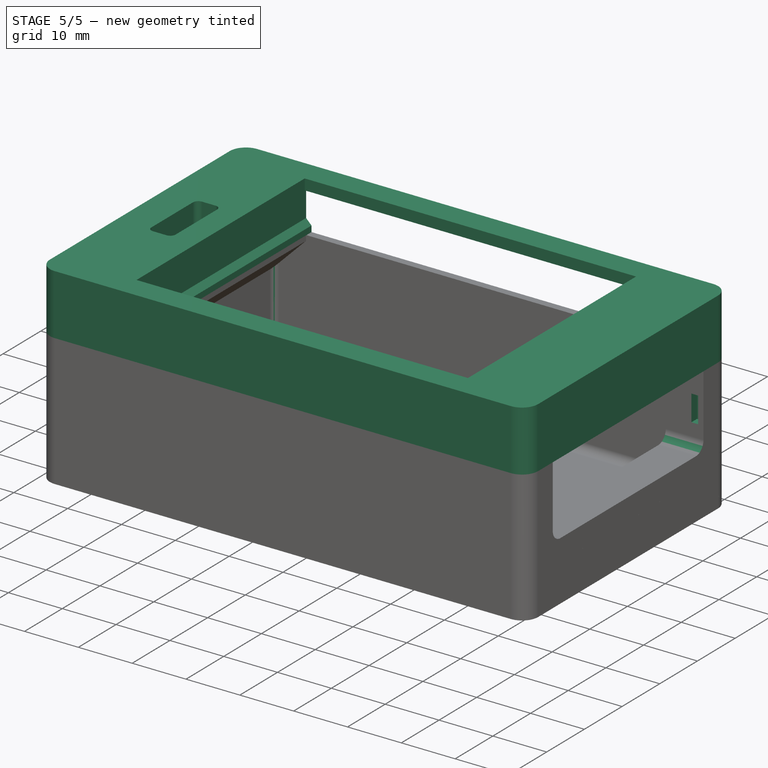
[diagram: stage 5 of 5 — iso view after this stage's code; geometry added in this stage tinted green]
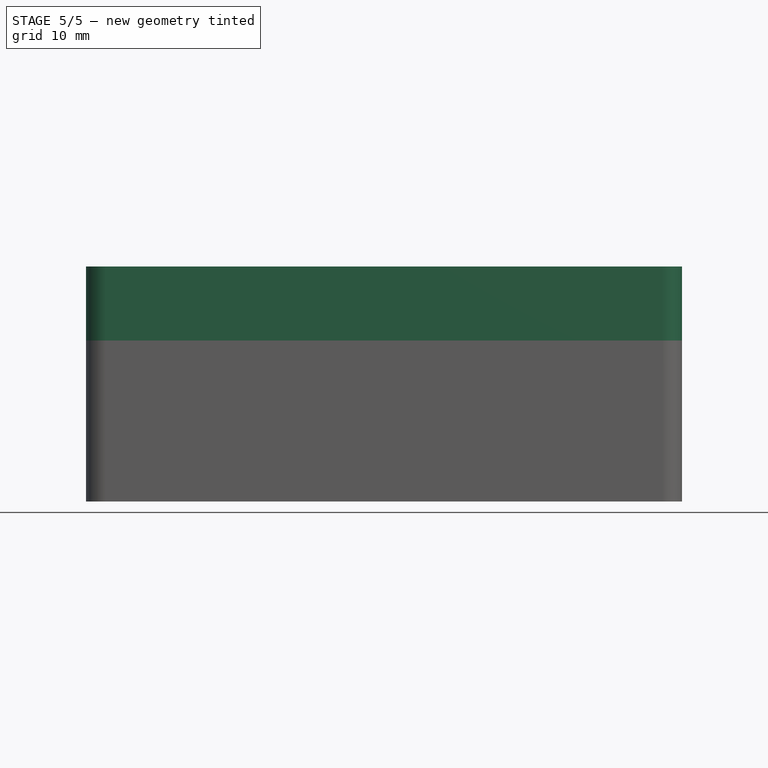
[diagram: stage 5 of 5 — front view after this stage's code; geometry added in this stage tinted green]
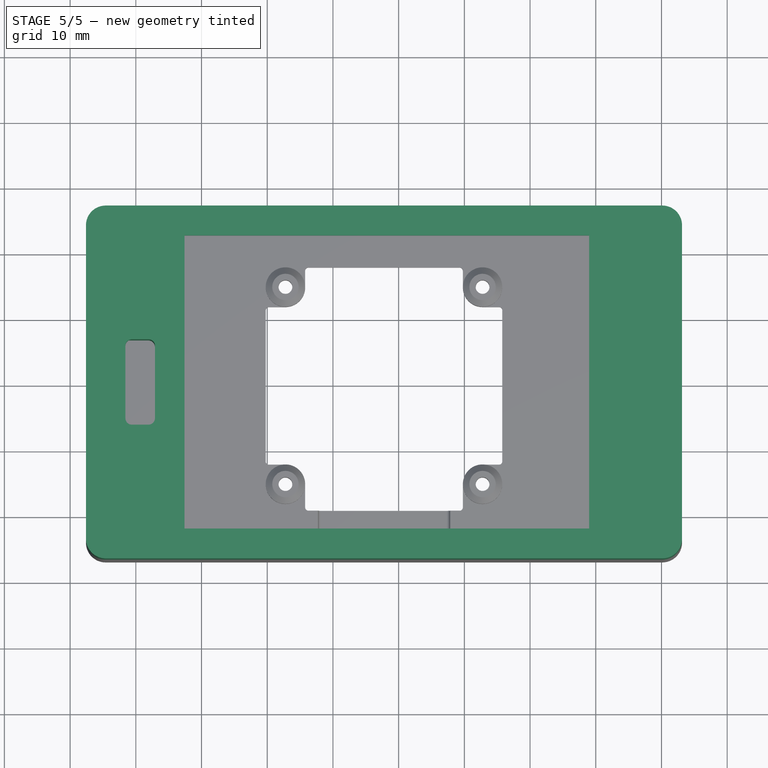
[diagram: stage 5 of 5 — top view after this stage's code; geometry added in this stage tinted green]
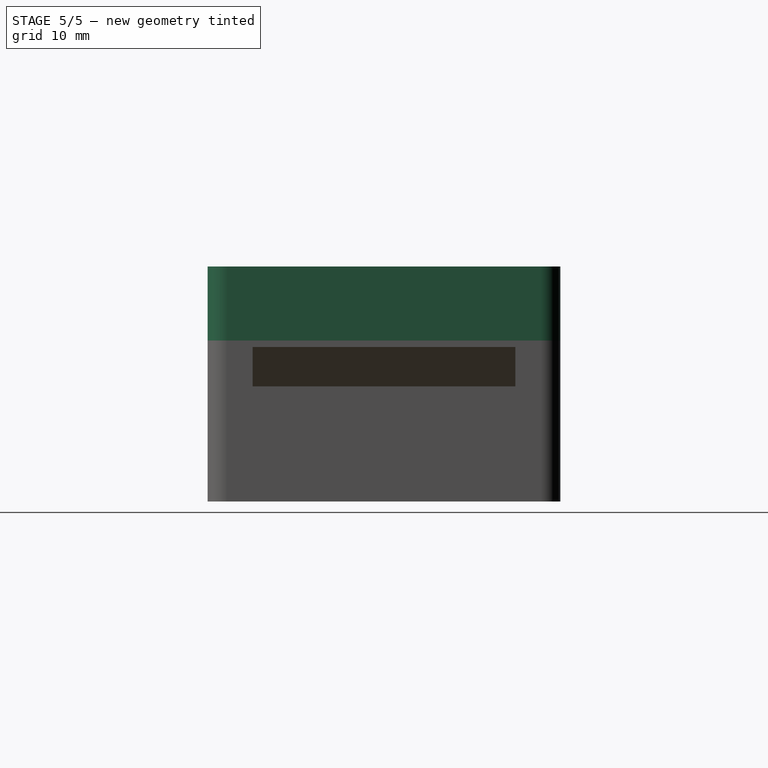
[diagram: stage 5 of 5 — right view after this stage's code; geometry added in this stage tinted green]
FEATURE [PartDesign::Pocket] Pocket008
  BaseFeature = -> Fillet003
  Length = 2.25
  Length2 = 100
  Profile = -> Sketch014
  Type = 0
FEATURE [PartDesign::Fillet] Fillet004
  Base = -> Pocket008 [Edge114,Edge118]
  BaseFeature = -> Pocket008
  Radius = 1
FEATURE [PartDesign::Fillet] Fillet005
  Base = -> Pad004 [Edge93,Edge91]
  BaseFeature = -> Pad004
  Radius = 1
FEATURE [PartDesign::Fillet] Fillet006
  Base = -> Fillet005 [Edge56,Edge71,Edge59]
  BaseFeature = -> Fillet005
  Radius = 1
FEATURE [PartDesign::Fillet] Fillet007
  Base = -> Fillet006 [Edge88,Edge32]
  BaseFeature = -> Fillet006
  Radius = 2
FEATURE [Sketcher::SketchObject] Sketch016
  ExternalGeometry = -> [Fillet007]
  MapMode = 5
  Placement = pos=(0,20,0) rot=(1,0,0;1.5708rad)
  Support = -> [Fillet007]
  sketch-geometry (7):
    g0: LineSegment [constr] StartX=36.125 StartY=-11.25 StartZ=0 EndX=43.125 EndY=-24.75 EndZ=0
    g1: LineSegment [constr] StartX=43.125 StartY=-11.25 StartZ=0 EndX=36.125 EndY=-24.75 EndZ=0
    g2: LineSegment StartX=40.875 StartY=-20.4107 StartZ=0 EndX=42.125 EndY=-20.4107 EndZ=0
    g3: LineSegment StartX=42.125 StartY=-20.4107 StartZ=0 EndX=42.125 EndY=-15.5893 EndZ=0
    g4: LineSegment StartX=42.125 StartY=-15.5893 StartZ=0 EndX=40.875 EndY=-15.5893 EndZ=0
    g5: LineSegment StartX=40.875 StartY=-15.5893 StartZ=0 EndX=40.875 EndY=-20.4107 EndZ=0
    g6: LineSegment [constr] StartX=43.125 StartY=-11.25 StartZ=0 EndX=43.125 EndY=-24.75 EndZ=0
  constraints (20):
    c: Coincident(g0,g-4)
    c: PointOnObject(g0,g-3)
    c: Coincident(g1,g-4)
    c: PointOnObject(g1,g-3)
    c: Vertical(g0,g1)
    c: Vertical(g1,g0)
    c: Coincident(g2,g3)
    c: Coincident(g3,g4)
    c: Coincident(g4,g5)
    c: Coincident(g5,g2)
    c: Horizontal(g2)
    c: Horizontal(g4)
    c: Vertical(g3)
    c: Vertical(g5)
    c: Coincident(g6,g1)
    c: Coincident(g6,g0)
    c: Distance(g3,g6) = 1
    c: PointOnObject(g4,g1)
    c: PointOnObject(g2,g0)
    c: Distance(g4) = 1.25
FEATURE [PartDesign::Pocket] Pocket009
  BaseFeature = -> Fillet007
  Length = 1.5
  Length2 = 100
  Profile = -> Sketch016
  Type = 0
FEATURE [PartDesign::Mirrored] Mirrored001
  BaseFeature = -> Pocket009
  MirrorPlane = -> XZ_Plane001
  Originals = -> [Pocket009]
FEATURE [PartDesign::Chamfer] Chamfer002
  Base = -> Mirrored001 [Edge105]
  BaseFeature = -> Mirrored001
  Size = 0.5
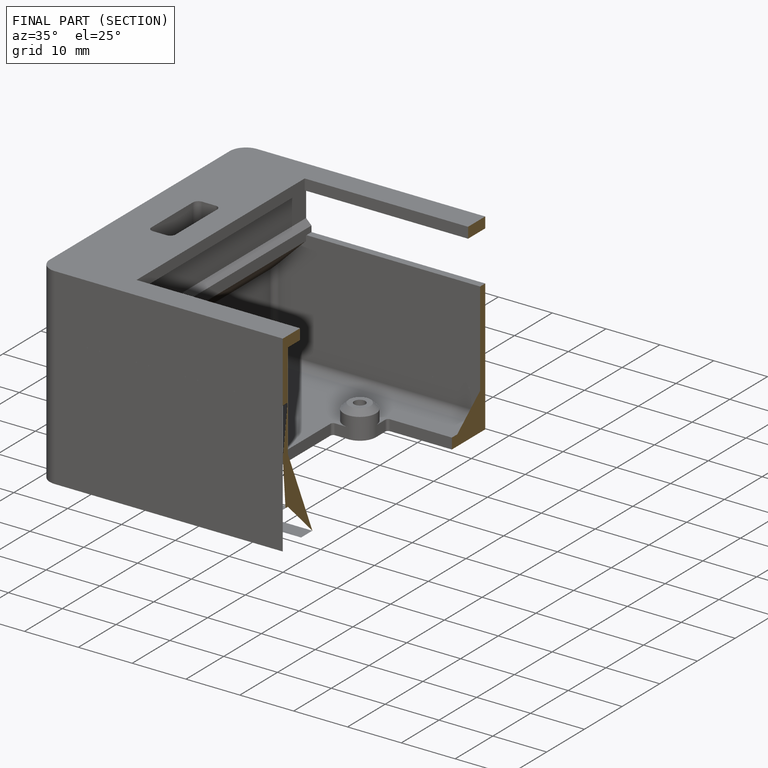
[diagram: finished part — half-section view (interior)]
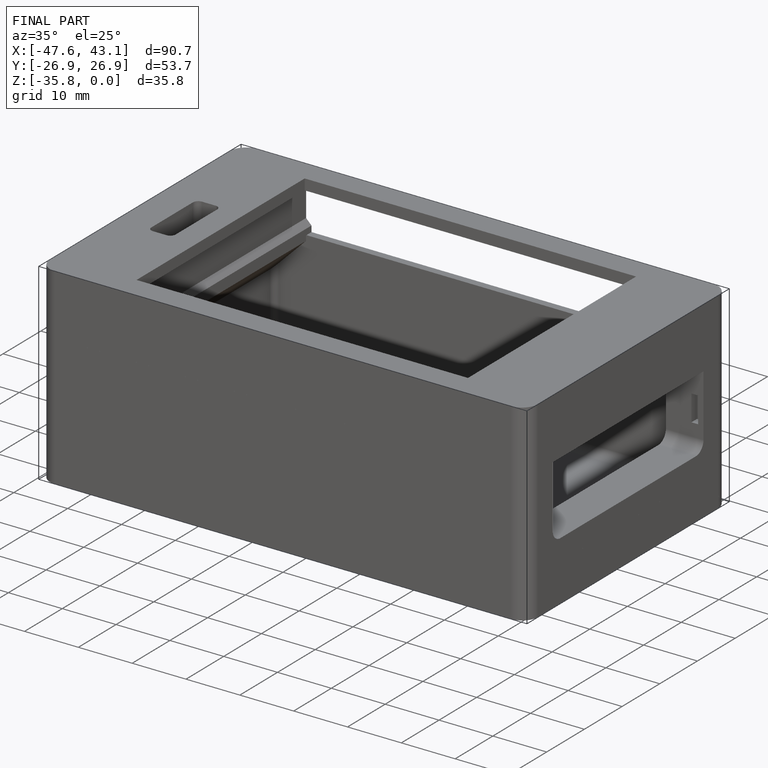
[diagram: finished part — iso view with bounding-box wireframe]
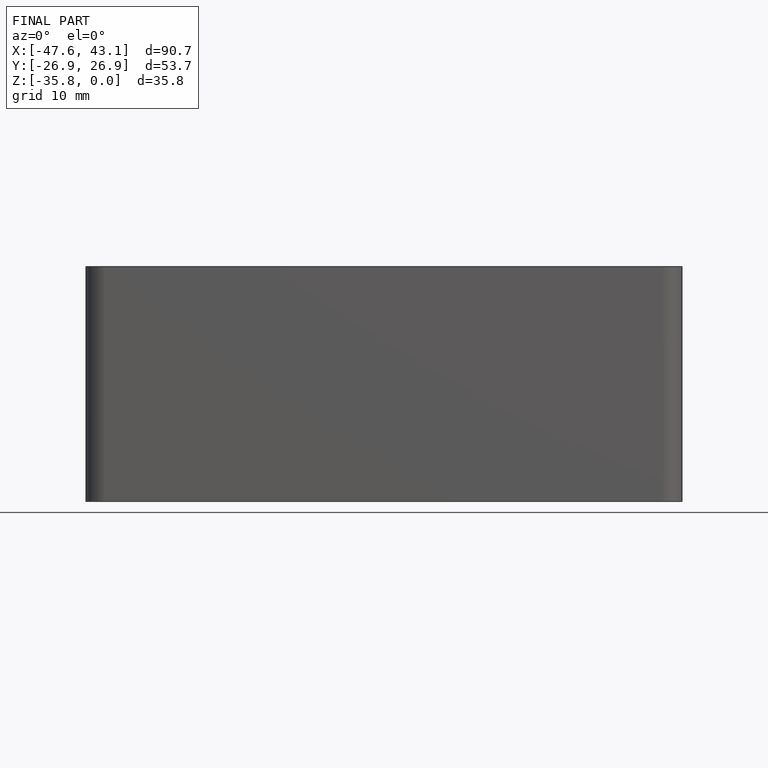
[diagram: finished part — front view with bounding-box wireframe]
